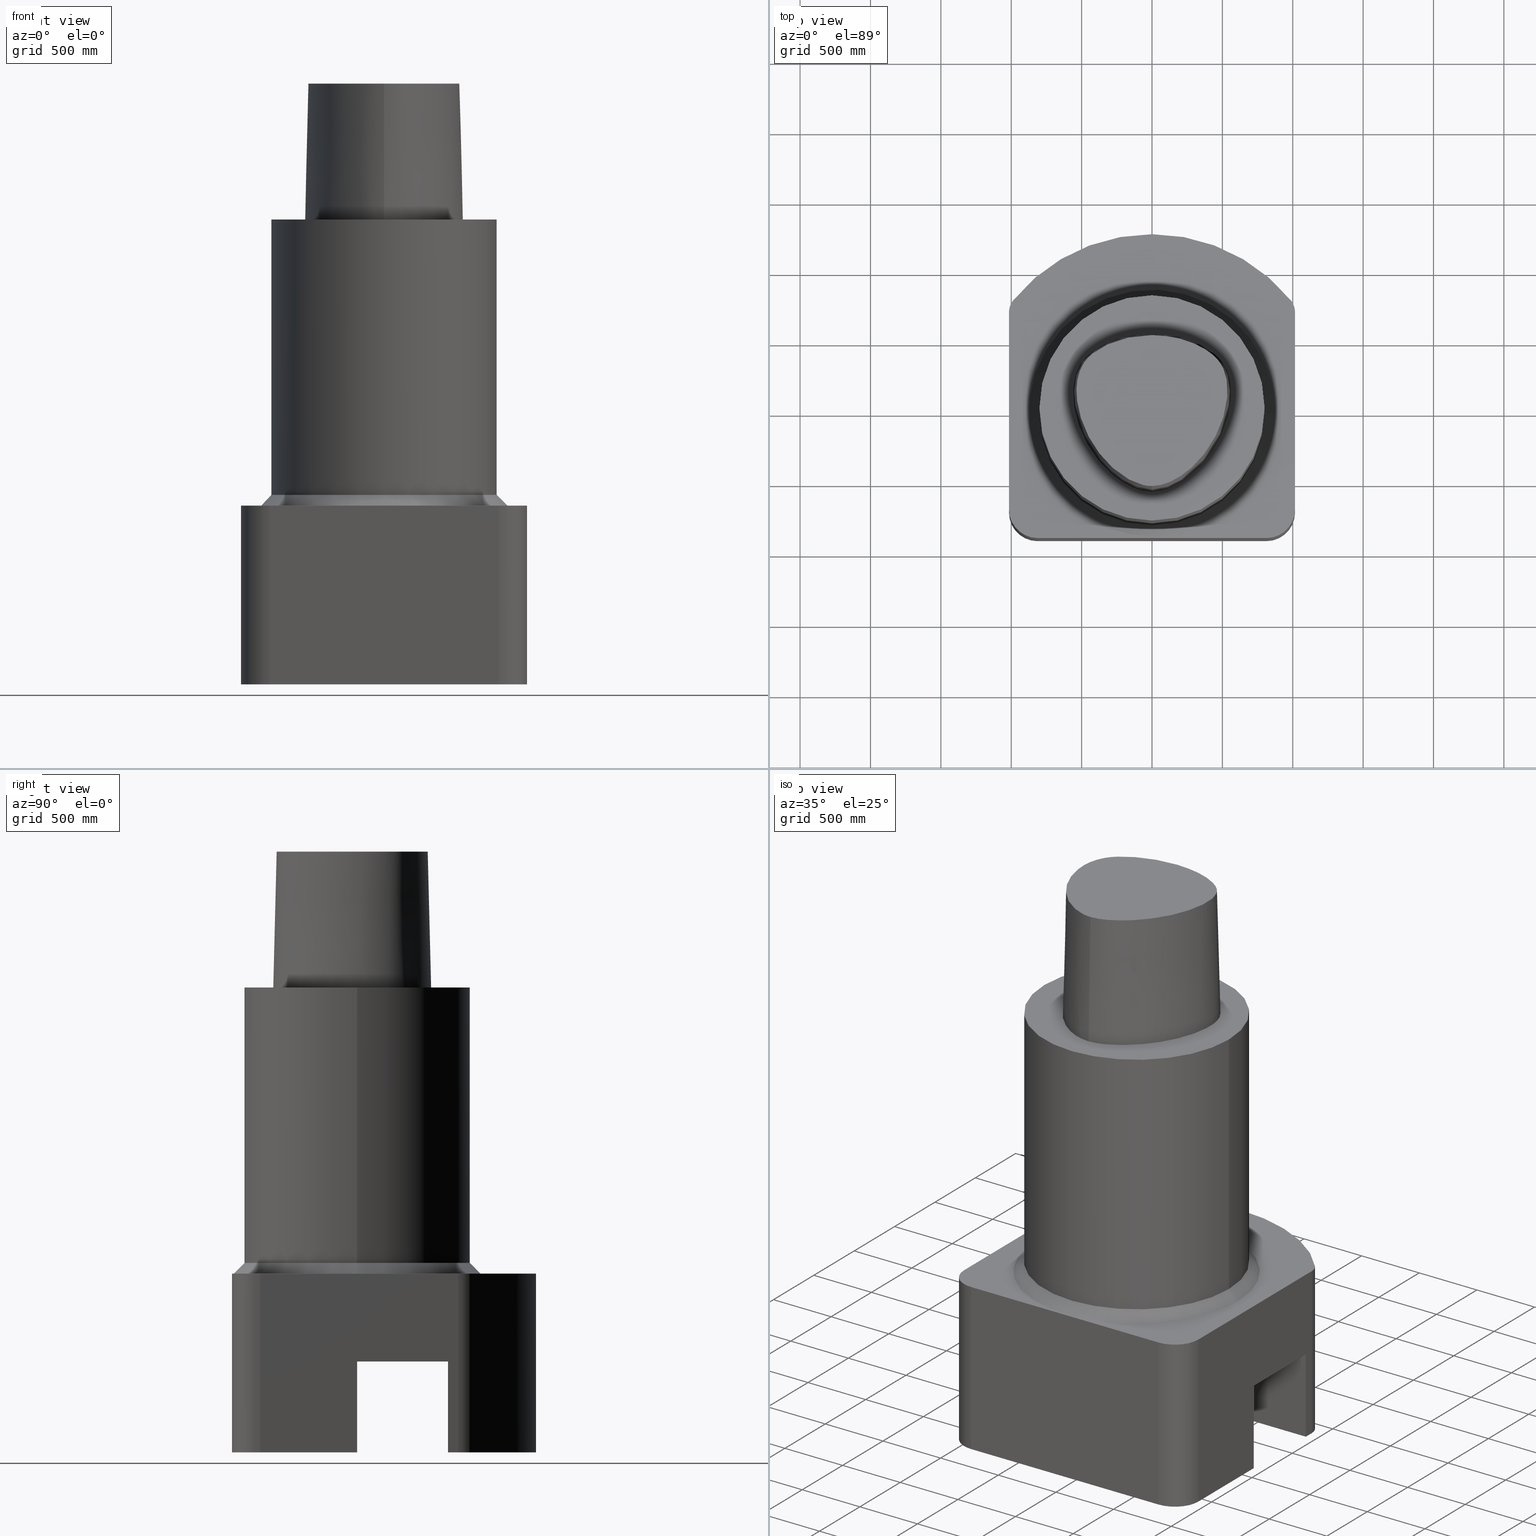
[diagram: canonical four-view strip — front | top / right | iso, engineering-drawing reading convention]
A machine part, canonical four-view strip (front | top / right | iso — engineering-drawing reading convention). The complete STEP part file that produces these views, byte-faithful:
ISO-10303-21;
HEADER;
FILE_DESCRIPTION((''),'1');
FILE_NAME('V:/01_Dxf_Field-HP\X2\FF71FF6FFF8CFF9F5916\X0\2013/BIGKAISER\X2\FF76FF80FF9BFF78FF9E63B28F095206\X0\_BKUS_201803/C6-BH/C6-90-BH1.000N-5.125.stp','2018-03-14T08:04:11',(''),(''),'Spatial Interop R21 SP3','Kubotek KeyCreator 2011 V10.0.2 (22737)',' ');
FILE_SCHEMA(('automotive_design'));
ENDSEC;
DATA;
#1=MECHANICAL_DESIGN_GEOMETRIC_PRESENTATION_REPRESENTATION(' ',(#10,#11,#12,#13,#14,#15,#16,#17,#18,#19,#20,#21,#22,#23,#24,#25,#26,#27,#28,#29,#30,#31,#32,#33,#34,#35,#36,#37,#38,#39,#40,#41,#42,#43,#44,#45,#46,#47,#48,#49,#50,#51,#52,#53,#54,#55,#56,#57,#58,#59,#60,#61,#62,#63,#64,#65,#66,#67,#68,#69,#70,#71,#72,#73,#74,#75,#76,#77,#78),#6);
#2=PRODUCT_DEFINITION_CONTEXT('',#79,'design');
#3=APPLICATION_PROTOCOL_DEFINITION('INTERNATIONAL STANDARD','automotive_design',1994,#79);
#4=PRODUCT_CATEGORY_RELATIONSHIP('NONE','NONE',#80,#81);
#5=SHAPE_DEFINITION_REPRESENTATION(#82,#83);
#6= (GEOMETRIC_REPRESENTATION_CONTEXT(3)GLOBAL_UNCERTAINTY_ASSIGNED_CONTEXT((#86))GLOBAL_UNIT_ASSIGNED_CONTEXT((#88,#89,#90))REPRESENTATION_CONTEXT('NONE','WORKSPACE'));
#10=STYLED_ITEM('',(#92),#93);
#11=STYLED_ITEM('',(#94,#95),#96);
#12=STYLED_ITEM('',(#97),#98);
#13=STYLED_ITEM('',(#99),#100);
#14=STYLED_ITEM('',(#101,#102),#103);
#15=STYLED_ITEM('',(#104),#105);
#16=STYLED_ITEM('',(#106),#107);
#17=STYLED_ITEM('',(#108),#109);
#18=STYLED_ITEM('',(#110),#111);
#19=STYLED_ITEM('',(#112),#113);
#20=STYLED_ITEM('',(#114),#115);
#21=STYLED_ITEM('',(#116),#117);
#22=STYLED_ITEM('',(#118),#119);
#23=STYLED_ITEM('',(#120),#121);
#24=STYLED_ITEM('',(#122),#123);
#25=STYLED_ITEM('',(#124,#125),#126);
#26=STYLED_ITEM('',(#127),#128);
#27=STYLED_ITEM('',(#129),#130);
#28=STYLED_ITEM('',(#131,#132),#133);
#29=STYLED_ITEM('',(#134),#135);
#30=STYLED_ITEM('',(#136),#137);
#31=STYLED_ITEM('',(#138,#139),#140);
#32=STYLED_ITEM('',(#141),#142);
#33=STYLED_ITEM('',(#143),#144);
#34=STYLED_ITEM('',(#145),#146);
#35=STYLED_ITEM('',(#147,#148),#149);
#36=STYLED_ITEM('',(#150,#151),#152);
#37=STYLED_ITEM('',(#153),#154);
#38=STYLED_ITEM('',(#155,#156),#157);
#39=STYLED_ITEM('',(#158),#159);
#40=STYLED_ITEM('',(#160,#161),#162);
#41=STYLED_ITEM('',(#163,#164),#165);
#42=STYLED_ITEM('',(#166,#167),#168);
#43=STYLED_ITEM('',(#169),#170);
#44=STYLED_ITEM('',(#171,#172),#173);
#45=STYLED_ITEM('',(#174,#175),#176);
#46=STYLED_ITEM('',(#177),#178);
#47=STYLED_ITEM('',(#179),#180);
#48=STYLED_ITEM('',(#181),#182);
#49=STYLED_ITEM('',(#183,#184),#185);
#50=STYLED_ITEM('',(#186),#187);
#51=STYLED_ITEM('',(#188),#189);
#52=STYLED_ITEM('',(#190),#191);
#53=STYLED_ITEM('',(#192,#193),#194);
#54=STYLED_ITEM('',(#195),#196);
#55=STYLED_ITEM('',(#197),#198);
#56=STYLED_ITEM('',(#199,#200),#201);
#57=STYLED_ITEM('',(#202),#203);
#58=STYLED_ITEM('',(#204),#205);
#59=STYLED_ITEM('',(#206),#207);
#60=STYLED_ITEM('',(#208,#209),#210);
#61=STYLED_ITEM('',(#211),#212);
#62=STYLED_ITEM('',(#213,#214),#215);
#63=STYLED_ITEM('',(#216),#217);
#64=STYLED_ITEM('',(#218,#219),#220);
#65=STYLED_ITEM('',(#221),#222);
#66=STYLED_ITEM('',(#223),#224);
#67=STYLED_ITEM('',(#225),#226);
#68=STYLED_ITEM('',(#227),#228);
#69=STYLED_ITEM('',(#229),#230);
#70=STYLED_ITEM('',(#231),#232);
#71=STYLED_ITEM('',(#233),#234);
#72=STYLED_ITEM('',(#235),#236);
#73=STYLED_ITEM('',(#237),#238);
#74=STYLED_ITEM('',(#239),#240);
#75=STYLED_ITEM('',(#241,#242),#243);
#76=STYLED_ITEM('',(#244,#245),#246);
#77=STYLED_ITEM('',(#247,#248),#249);
#78=STYLED_ITEM('',(#250),#251);
#79=APPLICATION_CONTEXT(' ');
#80=PRODUCT_CATEGORY('part','NONE');
#81=PRODUCT_RELATED_PRODUCT_CATEGORY('detail',' ',(#252));
#82=PRODUCT_DEFINITION_SHAPE('NONE','NONE',#253);
#83=ADVANCED_BREP_SHAPE_REPRESENTATION('Unnamed[1]',(#162,#254),#6);
#86=UNCERTAINTY_MEASURE_WITH_UNIT(LENGTH_MEASURE(1.0E-006),#88,'','');
#88= (CONVERSION_BASED_UNIT('INCH',#257)LENGTH_UNIT()NAMED_UNIT(#260));
#89= (NAMED_UNIT(#262)PLANE_ANGLE_UNIT()SI_UNIT($,.RADIAN.));
#90= (NAMED_UNIT(#262)SOLID_ANGLE_UNIT()SI_UNIT($,.STERADIAN.));
#92=PRESENTATION_STYLE_ASSIGNMENT((#268));
#93=EDGE_CURVE('Unnamed[1]',#269,#270,#271,.T.);
#94=PRESENTATION_STYLE_ASSIGNMENT((#272));
#95=PRESENTATION_STYLE_ASSIGNMENT((#273));
#96=ADVANCED_FACE('Unnamed[1]',(#274),#275,.F.);
#97=PRESENTATION_STYLE_ASSIGNMENT((#276));
#98=EDGE_CURVE('Unnamed[1]',#277,#278,#279,.T.);
#99=PRESENTATION_STYLE_ASSIGNMENT((#280));
#100=EDGE_CURVE('Unnamed[1]',#281,#282,#283,.T.);
#101=PRESENTATION_STYLE_ASSIGNMENT((#284));
#102=PRESENTATION_STYLE_ASSIGNMENT((#285));
#103=ADVANCED_FACE('Unnamed[1]',(#286,#287),#288,.T.);
#104=PRESENTATION_STYLE_ASSIGNMENT((#289));
#105=EDGE_CURVE('Unnamed[1]',#290,#291,#292,.T.);
#106=PRESENTATION_STYLE_ASSIGNMENT((#293));
#107=EDGE_CURVE('Unnamed[1]',#294,#295,#296,.T.);
#108=PRESENTATION_STYLE_ASSIGNMENT((#297));
#109=EDGE_CURVE('Unnamed[1]',#298,#281,#299,.T.);
#110=PRESENTATION_STYLE_ASSIGNMENT((#300));
#111=EDGE_CURVE('Unnamed[1]',#301,#302,#303,.T.);
#112=PRESENTATION_STYLE_ASSIGNMENT((#304));
#113=EDGE_CURVE('Unnamed[1]',#298,#305,#306,.T.);
#114=PRESENTATION_STYLE_ASSIGNMENT((#307));
#115=EDGE_CURVE('Unnamed[1]',#308,#309,#310,.T.);
#116=PRESENTATION_STYLE_ASSIGNMENT((#311));
#117=EDGE_CURVE('Unnamed[1]',#278,#295,#312,.T.);
#118=PRESENTATION_STYLE_ASSIGNMENT((#313));
#119=EDGE_CURVE('Unnamed[1]',#314,#282,#315,.T.);
#120=PRESENTATION_STYLE_ASSIGNMENT((#316));
#121=EDGE_CURVE('Unnamed[1]',#282,#317,#318,.T.);
#122=PRESENTATION_STYLE_ASSIGNMENT((#319));
#123=EDGE_CURVE('Unnamed[1]',#320,#308,#321,.T.);
#124=PRESENTATION_STYLE_ASSIGNMENT((#322));
#125=PRESENTATION_STYLE_ASSIGNMENT((#323));
#126=ADVANCED_FACE('Unnamed[1]',(#324),#325,.T.);
#127=PRESENTATION_STYLE_ASSIGNMENT((#326));
#128=EDGE_CURVE('Unnamed[1]',#327,#308,#328,.T.);
#129=PRESENTATION_STYLE_ASSIGNMENT((#329));
#130=EDGE_CURVE('Unnamed[1]',#330,#330,#331,.T.);
#131=PRESENTATION_STYLE_ASSIGNMENT((#332));
#132=PRESENTATION_STYLE_ASSIGNMENT((#333));
#133=ADVANCED_FACE('Unnamed[1]',(#334,#335),#336,.T.);
#134=PRESENTATION_STYLE_ASSIGNMENT((#337));
#135=EDGE_CURVE('Unnamed[1]',#302,#281,#338,.T.);
#136=PRESENTATION_STYLE_ASSIGNMENT((#339));
#137=EDGE_CURVE('Unnamed[1]',#290,#294,#340,.T.);
#138=PRESENTATION_STYLE_ASSIGNMENT((#341));
#139=PRESENTATION_STYLE_ASSIGNMENT((#342));
#140=ADVANCED_FACE('Unnamed[1]',(#343),#344,.T.);
#141=PRESENTATION_STYLE_ASSIGNMENT((#345));
#142=EDGE_CURVE('Unnamed[1]',#317,#309,#346,.T.);
#143=PRESENTATION_STYLE_ASSIGNMENT((#347));
#144=EDGE_CURVE('Unnamed[1]',#291,#348,#349,.T.);
#145=PRESENTATION_STYLE_ASSIGNMENT((#350));
#146=EDGE_CURVE('Unnamed[1]',#351,#317,#352,.T.);
#147=PRESENTATION_STYLE_ASSIGNMENT((#353));
#148=PRESENTATION_STYLE_ASSIGNMENT((#354));
#149=ADVANCED_FACE('Unnamed[1]',(#355),#356,.T.);
#150=PRESENTATION_STYLE_ASSIGNMENT((#357));
#151=PRESENTATION_STYLE_ASSIGNMENT((#358));
#152=ADVANCED_FACE('Unnamed[1]',(#359),#360,.T.);
#153=PRESENTATION_STYLE_ASSIGNMENT((#361));
#154=EDGE_CURVE('Unnamed[1]',#362,#291,#363,.T.);
#155=PRESENTATION_STYLE_ASSIGNMENT((#364));
#156=PRESENTATION_STYLE_ASSIGNMENT((#365));
#157=ADVANCED_FACE('Unnamed[1]',(#366),#367,.F.);
#158=PRESENTATION_STYLE_ASSIGNMENT((#368));
#159=EDGE_CURVE('Unnamed[1]',#305,#302,#369,.T.);
#160=PRESENTATION_STYLE_ASSIGNMENT((#370));
#161=PRESENTATION_STYLE_ASSIGNMENT((#371));
#162=MANIFOLD_SOLID_BREP('Unnamed[1]',#372);
#163=PRESENTATION_STYLE_ASSIGNMENT((#373));
#164=PRESENTATION_STYLE_ASSIGNMENT((#374));
#165=ADVANCED_FACE('Unnamed[1]',(#375),#376,.F.);
#166=PRESENTATION_STYLE_ASSIGNMENT((#377));
#167=PRESENTATION_STYLE_ASSIGNMENT((#378));
#168=ADVANCED_FACE('Unnamed[1]',(#379,#380),#381,.T.);
#169=PRESENTATION_STYLE_ASSIGNMENT((#382));
#170=EDGE_CURVE('Unnamed[1]',#383,#277,#384,.T.);
#171=PRESENTATION_STYLE_ASSIGNMENT((#385));
#172=PRESENTATION_STYLE_ASSIGNMENT((#386));
#173=ADVANCED_FACE('Unnamed[1]',(#387),#388,.F.);
#174=PRESENTATION_STYLE_ASSIGNMENT((#389));
#175=PRESENTATION_STYLE_ASSIGNMENT((#390));
#176=ADVANCED_FACE('Unnamed[1]',(#391),#392,.T.);
#177=PRESENTATION_STYLE_ASSIGNMENT((#393));
#178=EDGE_CURVE('Unnamed[1]',#394,#351,#395,.T.);
#179=PRESENTATION_STYLE_ASSIGNMENT((#396));
#180=EDGE_CURVE('Unnamed[1]',#269,#397,#398,.T.);
#181=PRESENTATION_STYLE_ASSIGNMENT((#399));
#182=EDGE_CURVE('Unnamed[1]',#394,#383,#400,.T.);
#183=PRESENTATION_STYLE_ASSIGNMENT((#401));
#184=PRESENTATION_STYLE_ASSIGNMENT((#402));
#185=ADVANCED_FACE('Unnamed[1]',(#403,#404),#405,.T.);
#186=PRESENTATION_STYLE_ASSIGNMENT((#406));
#187=EDGE_CURVE('Unnamed[1]',#320,#362,#407,.T.);
#188=PRESENTATION_STYLE_ASSIGNMENT((#408));
#189=EDGE_CURVE('Unnamed[1]',#409,#270,#410,.T.);
#190=PRESENTATION_STYLE_ASSIGNMENT((#411));
#191=EDGE_CURVE('Unnamed[1]',#278,#290,#412,.T.);
#192=PRESENTATION_STYLE_ASSIGNMENT((#413));
#193=PRESENTATION_STYLE_ASSIGNMENT((#414));
#194=ADVANCED_FACE('Unnamed[1]',(#415),#416,.F.);
#195=PRESENTATION_STYLE_ASSIGNMENT((#417));
#196=EDGE_CURVE('Unnamed[1]',#418,#418,#419,.T.);
#197=PRESENTATION_STYLE_ASSIGNMENT((#420));
#198=EDGE_CURVE('Unnamed[1]',#397,#409,#421,.T.);
#199=PRESENTATION_STYLE_ASSIGNMENT((#422));
#200=PRESENTATION_STYLE_ASSIGNMENT((#423));
#201=ADVANCED_FACE('Unnamed[1]',(#424),#425,.T.);
#202=PRESENTATION_STYLE_ASSIGNMENT((#426));
#203=EDGE_CURVE('Unnamed[1]',#348,#383,#427,.T.);
#204=PRESENTATION_STYLE_ASSIGNMENT((#428));
#205=EDGE_CURVE('Unnamed[1]',#351,#314,#429,.T.);
#206=PRESENTATION_STYLE_ASSIGNMENT((#430));
#207=EDGE_CURVE('Unnamed[1]',#269,#431,#432,.T.);
#208=PRESENTATION_STYLE_ASSIGNMENT((#433));
#209=PRESENTATION_STYLE_ASSIGNMENT((#434));
#210=ADVANCED_FACE('Unnamed[1]',(#435),#436,.T.);
#211=PRESENTATION_STYLE_ASSIGNMENT((#437));
#212=EDGE_CURVE('Unnamed[1]',#438,#394,#439,.T.);
#213=PRESENTATION_STYLE_ASSIGNMENT((#440));
#214=PRESENTATION_STYLE_ASSIGNMENT((#441));
#215=ADVANCED_FACE('Unnamed[1]',(#442),#443,.T.);
#216=PRESENTATION_STYLE_ASSIGNMENT((#444));
#217=EDGE_CURVE('Unnamed[1]',#270,#431,#445,.T.);
#218=PRESENTATION_STYLE_ASSIGNMENT((#446));
#219=PRESENTATION_STYLE_ASSIGNMENT((#447));
#220=ADVANCED_FACE('Unnamed[1]',(#448),#449,.T.);
#221=PRESENTATION_STYLE_ASSIGNMENT((#450));
#222=EDGE_CURVE('Unnamed[1]',#348,#327,#451,.T.);
#223=PRESENTATION_STYLE_ASSIGNMENT((#452));
#224=EDGE_CURVE('Unnamed[1]',#431,#409,#453,.T.);
#225=PRESENTATION_STYLE_ASSIGNMENT((#454));
#226=EDGE_CURVE('Unnamed[1]',#301,#320,#455,.T.);
#227=PRESENTATION_STYLE_ASSIGNMENT((#456));
#228=EDGE_CURVE('Unnamed[1]',#314,#298,#457,.T.);
#229=PRESENTATION_STYLE_ASSIGNMENT((#458));
#230=EDGE_CURVE('Unnamed[1]',#397,#269,#459,.T.);
#231=PRESENTATION_STYLE_ASSIGNMENT((#460));
#232=EDGE_CURVE('Unnamed[1]',#327,#362,#461,.T.);
#233=PRESENTATION_STYLE_ASSIGNMENT((#462));
#234=EDGE_CURVE('Unnamed[1]',#438,#295,#463,.T.);
#235=PRESENTATION_STYLE_ASSIGNMENT((#464));
#236=EDGE_CURVE('Unnamed[1]',#277,#438,#465,.T.);
#237=PRESENTATION_STYLE_ASSIGNMENT((#466));
#238=EDGE_CURVE('Unnamed[1]',#305,#294,#467,.T.);
#239=PRESENTATION_STYLE_ASSIGNMENT((#468));
#240=EDGE_CURVE('Unnamed[1]',#469,#469,#470,.T.);
#241=PRESENTATION_STYLE_ASSIGNMENT((#471));
#242=PRESENTATION_STYLE_ASSIGNMENT((#472));
#243=ADVANCED_FACE('Unnamed[1]',(#473),#474,.T.);
#244=PRESENTATION_STYLE_ASSIGNMENT((#475));
#245=PRESENTATION_STYLE_ASSIGNMENT((#476));
#246=ADVANCED_FACE('Unnamed[1]',(#477),#478,.F.);
#247=PRESENTATION_STYLE_ASSIGNMENT((#479));
#248=PRESENTATION_STYLE_ASSIGNMENT((#480));
#249=ADVANCED_FACE('Unnamed[1]',(#481),#482,.T.);
#250=PRESENTATION_STYLE_ASSIGNMENT((#483));
#251=EDGE_CURVE('Unnamed[1]',#309,#301,#484,.T.);
#252=PRODUCT('Unnamed[1]','Unnamed[1]','PART-Unnamed[1]-DESC',(#485));
#253=PRODUCT_DEFINITION('NONE','NONE',#486,#2);
#254=AXIS2_PLACEMENT_3D('',#487,#488,#489);
#257=LENGTH_MEASURE_WITH_UNIT(LENGTH_MEASURE(25.4),#490);
#260=DIMENSIONAL_EXPONENTS(1.0,0.0,0.0,0.0,0.0,0.0,0.0);
#262=DIMENSIONAL_EXPONENTS(0.0,0.0,0.0,0.0,0.0,0.0,0.0);
#268=CURVE_STYLE('',#491,POSITIVE_LENGTH_MEASURE(1000.0),#492);
#269=VERTEX_POINT('',#493);
#270=VERTEX_POINT('',#494);
#271=LINE('',#495,#496);
#272=SURFACE_STYLE_USAGE(.BOTH.,#497);
#273=CURVE_STYLE('',#498,POSITIVE_LENGTH_MEASURE(1000.0),#499);
#274=FACE_OUTER_BOUND('',#500,.T.);
#275=PLANE('',#501);
#276=CURVE_STYLE('',#502,POSITIVE_LENGTH_MEASURE(1000.0),#503);
#277=VERTEX_POINT('',#504);
#278=VERTEX_POINT('',#505);
#279=CIRCLE('',#506,50.0000000000007);
#280=CURVE_STYLE('',#507,POSITIVE_LENGTH_MEASURE(1000.0),#508);
#281=VERTEX_POINT('',#509);
#282=VERTEX_POINT('',#510);
#283=LINE('',#511,#512);
#284=SURFACE_STYLE_USAGE(.BOTH.,#513);
#285=CURVE_STYLE('',#514,POSITIVE_LENGTH_MEASURE(1000.0),#515);
#286=FACE_BOUND('',#516,.T.);
#287=FACE_OUTER_BOUND('',#517,.T.);
#288=PLANE('',#518);
#289=CURVE_STYLE('',#519,POSITIVE_LENGTH_MEASURE(1000.0),#520);
#290=VERTEX_POINT('',#521);
#291=VERTEX_POINT('',#522);
#292=LINE('',#523,#524);
#293=CURVE_STYLE('',#525,POSITIVE_LENGTH_MEASURE(1000.0),#526);
#294=VERTEX_POINT('',#527);
#295=VERTEX_POINT('',#528);
#296=CIRCLE('',#529,5.0);
#297=CURVE_STYLE('',#530,POSITIVE_LENGTH_MEASURE(1000.0),#531);
#298=VERTEX_POINT('',#532);
#299=LINE('',#533,#534);
#300=CURVE_STYLE('',#535,POSITIVE_LENGTH_MEASURE(1000.0),#536);
#301=VERTEX_POINT('',#537);
#302=VERTEX_POINT('',#538);
#303=LINE('',#539,#540);
#304=CURVE_STYLE('',#541,POSITIVE_LENGTH_MEASURE(1000.0),#542);
#305=VERTEX_POINT('',#543);
#306=CIRCLE('',#544,8.0);
#307=CURVE_STYLE('',#545,POSITIVE_LENGTH_MEASURE(1000.0),#546);
#308=VERTEX_POINT('',#547);
#309=VERTEX_POINT('',#548);
#310=LINE('',#549,#550);
#311=CURVE_STYLE('',#551,POSITIVE_LENGTH_MEASURE(1000.0),#552);
#312=LINE('',#553,#554);
#313=CURVE_STYLE('',#555,POSITIVE_LENGTH_MEASURE(1000.0),#556);
#314=VERTEX_POINT('',#557);
#315=LINE('',#558,#559);
#316=CURVE_STYLE('',#560,POSITIVE_LENGTH_MEASURE(1000.0),#561);
#317=VERTEX_POINT('',#562);
#318=CIRCLE('',#563,8.0);
#319=CURVE_STYLE('',#564,POSITIVE_LENGTH_MEASURE(1000.0),#565);
#320=VERTEX_POINT('',#566);
#321=LINE('',#567,#568);
#322=SURFACE_STYLE_USAGE(.BOTH.,#569);
#323=CURVE_STYLE('',#570,POSITIVE_LENGTH_MEASURE(1000.0),#571);
#324=FACE_OUTER_BOUND('',#572,.T.);
#325=CYLINDRICAL_SURFACE('',#573,5.0);
#326=CURVE_STYLE('',#574,POSITIVE_LENGTH_MEASURE(1000.0),#575);
#327=VERTEX_POINT('',#576);
#328=LINE('',#577,#578);
#329=CURVE_STYLE('',#579,POSITIVE_LENGTH_MEASURE(1000.0),#580);
#330=VERTEX_POINT('',#581);
#331=CIRCLE('',#582,31.5);
#332=SURFACE_STYLE_USAGE(.BOTH.,#583);
#333=CURVE_STYLE('',#584,POSITIVE_LENGTH_MEASURE(1000.0),#585);
#334=FACE_BOUND('',#586,.T.);
#335=FACE_OUTER_BOUND('',#587,.T.);
#336=PLANE('',#588);
#337=CURVE_STYLE('',#589,POSITIVE_LENGTH_MEASURE(1000.0),#590);
#338=CIRCLE('',#591,8.0);
#339=CURVE_STYLE('',#592,POSITIVE_LENGTH_MEASURE(1000.0),#593);
#340=LINE('',#594,#595);
#341=SURFACE_STYLE_USAGE(.BOTH.,#596);
#342=CURVE_STYLE('',#597,POSITIVE_LENGTH_MEASURE(1000.0),#598);
#343=FACE_OUTER_BOUND('',#599,.T.);
#344=CYLINDRICAL_SURFACE('',#600,5.0);
#345=CURVE_STYLE('',#601,POSITIVE_LENGTH_MEASURE(1000.0),#602);
#346=LINE('',#603,#604);
#347=CURVE_STYLE('',#605,POSITIVE_LENGTH_MEASURE(1000.0),#606);
#348=VERTEX_POINT('',#607);
#349=LINE('',#608,#609);
#350=CURVE_STYLE('',#610,POSITIVE_LENGTH_MEASURE(1000.0),#611);
#351=VERTEX_POINT('',#612);
#352=LINE('',#613,#614);
#353=SURFACE_STYLE_USAGE(.BOTH.,#615);
#354=CURVE_STYLE('',#616,POSITIVE_LENGTH_MEASURE(1000.0),#617);
#355=FACE_OUTER_BOUND('',#618,.T.);
#356=PLANE('',#619);
#357=SURFACE_STYLE_USAGE(.BOTH.,#620);
#358=CURVE_STYLE('',#621,POSITIVE_LENGTH_MEASURE(1000.0),#622);
#359=FACE_OUTER_BOUND('',#623,.T.);
#360=PLANE('',#624);
#361=CURVE_STYLE('',#625,POSITIVE_LENGTH_MEASURE(1000.0),#626);
#362=VERTEX_POINT('',#627);
#363=LINE('',#628,#629);
#364=SURFACE_STYLE_USAGE(.BOTH.,#630);
#365=CURVE_STYLE('',#631,POSITIVE_LENGTH_MEASURE(1000.0),#632);
#366=FACE_OUTER_BOUND('',#633,.T.);
#367=PLANE('',#634);
#368=CURVE_STYLE('',#635,POSITIVE_LENGTH_MEASURE(1000.0),#636);
#369=LINE('',#637,#638);
#370=SURFACE_STYLE_USAGE(.BOTH.,#639);
#371=CURVE_STYLE('',#640,POSITIVE_LENGTH_MEASURE(1000.0),#641);
#372=CLOSED_SHELL('',(#243,#210,#201,#152,#157,#194,#96,#176,#149,#165,#215,#246,#140,#126,#173,#220,#103,#249,#133,#185,#168));
#373=SURFACE_STYLE_USAGE(.BOTH.,#642);
#374=CURVE_STYLE('',#643,POSITIVE_LENGTH_MEASURE(1000.0),#644);
#375=FACE_OUTER_BOUND('',#645,.T.);
#376=PLANE('',#646);
#377=SURFACE_STYLE_USAGE(.BOTH.,#647);
#378=CURVE_STYLE('',#648,POSITIVE_LENGTH_MEASURE(1000.0),#649);
#379=FACE_BOUND('',#650,.T.);
#380=FACE_BOUND('',#651,.T.);
#381=CONICAL_SURFACE('',#652,33.0000508075692,0.785398163397448);
#382=CURVE_STYLE('',#653,POSITIVE_LENGTH_MEASURE(1000.0),#654);
#383=VERTEX_POINT('',#655);
#384=CIRCLE('',#656,5.0);
#385=SURFACE_STYLE_USAGE(.BOTH.,#657);
#386=CURVE_STYLE('',#658,POSITIVE_LENGTH_MEASURE(1000.0),#659);
#387=FACE_OUTER_BOUND('',#660,.T.);
#388=PLANE('',#661);
#389=SURFACE_STYLE_USAGE(.BOTH.,#662);
#390=CURVE_STYLE('',#663,POSITIVE_LENGTH_MEASURE(1000.0),#664);
#391=FACE_OUTER_BOUND('',#665,.T.);
#392=PLANE('',#666);
#393=CURVE_STYLE('',#667,POSITIVE_LENGTH_MEASURE(1000.0),#668);
#394=VERTEX_POINT('',#669);
#395=LINE('',#670,#671);
#396=CURVE_STYLE('',#672,POSITIVE_LENGTH_MEASURE(1000.0),#673);
#397=VERTEX_POINT('',#674);
#398=B_SPLINE_CURVE_WITH_KNOTS('',3,(#675,#676,#677,#678,#679,#680,#681,#682,#683,#684,#685,#686,#687,#688,#689,#690),.UNSPECIFIED.,.F.,.F.,(4,1,1,1,1,1,1,1,1,1,1,1,1,4),(0.0,0.447924670568964,0.9388024242536,1.50591409090711,2.07314340012323,2.72424957442464,3.2253501842849,3.80982102049476,4.34867996267067,4.85900173381144,5.37972031856977,6.03459825488646,6.61113557741484,6.61513393087395),.UNSPECIFIED.);
#399=CURVE_STYLE('',#691,POSITIVE_LENGTH_MEASURE(1000.0),#692);
#400=LINE('',#693,#694);
#401=SURFACE_STYLE_USAGE(.BOTH.,#695);
#402=CURVE_STYLE('',#696,POSITIVE_LENGTH_MEASURE(1000.0),#697);
#403=FACE_BOUND('',#698,.T.);
#404=FACE_BOUND('',#699,.T.);
#405=CYLINDRICAL_SURFACE('',#700,31.5);
#406=CURVE_STYLE('',#701,POSITIVE_LENGTH_MEASURE(1000.0),#702);
#407=LINE('',#703,#704);
#408=CURVE_STYLE('',#705,POSITIVE_LENGTH_MEASURE(1000.0),#706);
#409=VERTEX_POINT('',#707);
#410=B_SPLINE_CURVE_WITH_KNOTS('',3,(#708,#709,#710,#711,#712,#713,#714,#715,#716,#717,#718,#719,#720,#721,#722,#723,#724,#725),.UNSPECIFIED.,.F.,.F.,(4,1,1,1,1,1,1,1,1,2,1,1,1,1,4),(-6.6151339308743,-6.20168806019465,-5.78824218951501,-5.37479631883537,-4.96135044815572,-4.13445870679644,-3.30756696543715,-2.89412109475751,-2.48067522407786,-2.06722935339822,-1.65378348271857,-1.24033761203893,-0.826891741359287,-0.413445870679644,0.0),.UNSPECIFIED.);
#411=CURVE_STYLE('',#726,POSITIVE_LENGTH_MEASURE(1000.0),#727);
#412=CIRCLE('',#728,5.0);
#413=SURFACE_STYLE_USAGE(.BOTH.,#729);
#414=CURVE_STYLE('',#730,POSITIVE_LENGTH_MEASURE(1000.0),#731);
#415=FACE_OUTER_BOUND('',#732,.T.);
#416=PLANE('',#733);
#417=CURVE_STYLE('',#734,POSITIVE_LENGTH_MEASURE(1000.0),#735);
#418=VERTEX_POINT('',#736);
#419=CIRCLE('',#737,34.5001016151384);
#420=CURVE_STYLE('',#738,POSITIVE_LENGTH_MEASURE(1000.0),#739);
#421=LINE('',#740,#741);
#422=SURFACE_STYLE_USAGE(.BOTH.,#742);
#423=CURVE_STYLE('',#743,POSITIVE_LENGTH_MEASURE(1000.0),#744);
#424=FACE_OUTER_BOUND('',#745,.T.);
#425=CONICAL_SURFACE('',#746,1.0,0.0249931148600041);
#426=CURVE_STYLE('',#747,POSITIVE_LENGTH_MEASURE(1000.0),#748);
#427=LINE('',#749,#750);
#428=CURVE_STYLE('',#751,POSITIVE_LENGTH_MEASURE(1000.0),#752);
#429=CIRCLE('',#753,8.0);
#430=CURVE_STYLE('',#754,POSITIVE_LENGTH_MEASURE(1000.0),#755);
#431=VERTEX_POINT('',#756);
#432=LINE('',#757,#758);
#433=SURFACE_STYLE_USAGE(.BOTH.,#759);
#434=CURVE_STYLE('',#760,POSITIVE_LENGTH_MEASURE(1000.0),#761);
#435=FACE_OUTER_BOUND('',#762,.T.);
#436=B_SPLINE_SURFACE_WITH_KNOTS('',3,3,((#763,#764,#765,#766),(#767,#768,#769,#770),(#771,#772,#773,#774),(#775,#776,#777,#778),(#779,#780,#781,#782),(#783,#784,#785,#786),(#787,#788,#789,#790),(#791,#792,#793,#794),(#795,#796,#797,#798),(#799,#800,#801,#802),(#803,#804,#805,#806),(#807,#808,#809,#810),(#811,#812,#813,#814),(#815,#816,#817,#818),(#819,#820,#821,#822),(#823,#824,#825,#826),(#827,#828,#829,#830),(#831,#832,#833,#834)),.UNSPECIFIED.,.F.,.F.,.F.,(4,1,1,1,1,1,1,1,1,2,1,1,1,1,4),(4,4),(-6.6151339308743,-6.20168806019465,-5.78824218951501,-5.37479631883537,-4.96135044815572,-4.13445870679644,-3.30756696543715,-2.89412109475751,-2.48067522407786,-2.06722935339822,-1.65378348271857,-1.24033761203893,-0.826891741359287,-0.413445870679644,0.0),(-3.8,0.0),.UNSPECIFIED.);
#437=CURVE_STYLE('',#835,POSITIVE_LENGTH_MEASURE(1000.0),#836);
#438=VERTEX_POINT('',#837);
#439=CIRCLE('',#838,5.0);
#440=SURFACE_STYLE_USAGE(.BOTH.,#839);
#441=CURVE_STYLE('',#840,POSITIVE_LENGTH_MEASURE(1000.0),#841);
#442=FACE_OUTER_BOUND('',#842,.T.);
#443=CYLINDRICAL_SURFACE('',#843,8.0);
#444=CURVE_STYLE('',#844,POSITIVE_LENGTH_MEASURE(1000.0),#845);
#445=CIRCLE('',#846,0.949936168436318);
#446=SURFACE_STYLE_USAGE(.BOTH.,#847);
#447=CURVE_STYLE('',#848,POSITIVE_LENGTH_MEASURE(1000.0),#849);
#448=FACE_OUTER_BOUND('',#850,.T.);
#449=CYLINDRICAL_SURFACE('',#851,8.0);
#450=CURVE_STYLE('',#852,POSITIVE_LENGTH_MEASURE(1000.0),#853);
#451=LINE('',#854,#855);
#452=CURVE_STYLE('',#856,POSITIVE_LENGTH_MEASURE(1000.0),#857);
#453=B_SPLINE_CURVE_WITH_KNOTS('',3,(#858,#859,#860,#861,#862,#863,#864,#865,#866,#867,#868,#869,#870,#871,#872,#873,#874),.UNSPECIFIED.,.F.,.F.,(4,1,1,1,1,1,1,1,1,1,1,1,1,1,4),(-13.2302678617486,-12.816821991069,-12.4033761203893,-11.9899302497097,-11.57648437903,-11.1630385083504,-10.9563155730106,-10.7495926376707,-10.3361467669911,-9.92270089631145,-9.09580915495216,-8.26891741359287,-7.44202567223358,-7.02857980155394,-6.6151339308743),.UNSPECIFIED.);
#454=CURVE_STYLE('',#875,POSITIVE_LENGTH_MEASURE(1000.0),#876);
#455=LINE('',#877,#878);
#456=CURVE_STYLE('',#879,POSITIVE_LENGTH_MEASURE(1000.0),#880);
#457=LINE('',#881,#882);
#458=CURVE_STYLE('',#883,POSITIVE_LENGTH_MEASURE(1000.0),#884);
#459=B_SPLINE_CURVE_WITH_KNOTS('',3,(#885,#886,#887,#888,#889,#890,#891,#892,#893,#894,#895,#896,#897,#898,#899,#900),.UNSPECIFIED.,.F.,.F.,(4,1,1,1,1,1,1,1,1,1,1,1,1,4),(6.61513393087476,6.99917207152274,7.48193246986995,7.96289324787093,8.45540287038584,9.10291653679981,9.67129810936083,10.1618749681153,10.6358867802489,11.1080734988593,11.6043706019633,12.09451993853,12.6985979284494,13.2302678617486),.UNSPECIFIED.);
#460=CURVE_STYLE('',#901,POSITIVE_LENGTH_MEASURE(1000.0),#902);
#461=LINE('',#903,#904);
#462=CURVE_STYLE('',#905,POSITIVE_LENGTH_MEASURE(1000.0),#906);
#463=CIRCLE('',#907,50.0000000000004);
#464=CURVE_STYLE('',#908,POSITIVE_LENGTH_MEASURE(1000.0),#909);
#465=LINE('',#910,#911);
#466=CURVE_STYLE('',#912,POSITIVE_LENGTH_MEASURE(1000.0),#913);
#467=LINE('',#914,#915);
#468=CURVE_STYLE('',#916,POSITIVE_LENGTH_MEASURE(1000.0),#917);
#469=VERTEX_POINT('',#918);
#470=CIRCLE('',#919,31.5);
#471=SURFACE_STYLE_USAGE(.BOTH.,#920);
#472=CURVE_STYLE('',#921,POSITIVE_LENGTH_MEASURE(1000.0),#922);
#473=FACE_OUTER_BOUND('',#923,.T.);
#474=B_SPLINE_SURFACE_WITH_KNOTS('',3,3,((#924,#925,#926,#927),(#928,#929,#930,#931),(#932,#933,#934,#935),(#936,#937,#938,#939),(#940,#941,#942,#943),(#944,#945,#946,#947),(#948,#949,#950,#951),(#952,#953,#954,#955),(#956,#957,#958,#959),(#960,#961,#962,#963),(#964,#965,#966,#967),(#968,#969,#970,#971),(#972,#973,#974,#975),(#976,#977,#978,#979),(#980,#981,#982,#983),(#984,#985,#986,#987),(#988,#989,#990,#991)),.UNSPECIFIED.,.F.,.F.,.F.,(4,1,1,1,1,1,1,1,1,1,1,1,1,1,4),(4,4),(-13.2302678617486,-12.816821991069,-12.4033761203893,-11.9899302497097,-11.57648437903,-11.1630385083504,-10.9563155730106,-10.7495926376707,-10.3361467669911,-9.92270089631145,-9.09580915495216,-8.26891741359287,-7.44202567223358,-7.02857980155394,-6.6151339308743),(-3.8,0.0),.UNSPECIFIED.);
#475=SURFACE_STYLE_USAGE(.BOTH.,#992);
#476=CURVE_STYLE('',#993,POSITIVE_LENGTH_MEASURE(1000.0),#994);
#477=FACE_OUTER_BOUND('',#995,.T.);
#478=PLANE('',#996);
#479=SURFACE_STYLE_USAGE(.BOTH.,#997);
#480=CURVE_STYLE('',#998,POSITIVE_LENGTH_MEASURE(1000.0),#999);
#481=FACE_OUTER_BOUND('',#1000,.T.);
#482=CYLINDRICAL_SURFACE('',#1001,50.0000000000005);
#483=CURVE_STYLE('',#1002,POSITIVE_LENGTH_MEASURE(1000.0),#1003);
#484=LINE('',#1004,#1005);
#485=PRODUCT_CONTEXT('',#79,'mechanical');
#486=PRODUCT_DEFINITION_FORMATION_WITH_SPECIFIED_SOURCE(' ','NONE',#252,.NOT_KNOWN.);
#487=CARTESIAN_POINT('',(0.0,0.0,0.0));
#488=DIRECTION('',(0.0,0.0,1.0));
#489=DIRECTION('',(1.0,0.0,0.0));
#490= (NAMED_UNIT(#260)LENGTH_UNIT()SI_UNIT(.MILLI.,.METRE.));
#491=DRAUGHTING_PRE_DEFINED_CURVE_FONT('continuous');
#492=COLOUR_RGB('',0.0,1.0,0.0);
#493=CARTESIAN_POINT('',(-0.001218547003662,19.7276821925089,38.0));
#494=CARTESIAN_POINT('',(-0.045171994691285,20.6766009553285,-1.97215226305253E-031));
#495=CARTESIAN_POINT('',(-0.001218547003662,19.7276821925089,38.0));
#496=VECTOR('',#1007,38.0118715498723);
#497=SURFACE_SIDE_STYLE('',(#1008));
#498=DRAUGHTING_PRE_DEFINED_CURVE_FONT('continuous');
#499=COLOUR_RGB('',0.0,1.0,0.0);
#500=EDGE_LOOP('',(#1009,#1010,#1011,#1012));
#501=AXIS2_PLACEMENT_3D('',#1013,#1014,#1015);
#502=DRAUGHTING_PRE_DEFINED_CURVE_FONT('continuous');
#503=COLOUR_RGB('',0.0,1.0,0.0);
#504=CARTESIAN_POINT('',(-38.8888888888895,31.426968052735,-130.0));
#505=CARTESIAN_POINT('',(38.8888888888884,31.4269680527349,-130.0));
#506=AXIS2_PLACEMENT_3D('',#1016,#1017,#1018);
#507=DRAUGHTING_PRE_DEFINED_CURVE_FONT('continuous');
#508=COLOUR_RGB('',0.0,1.0,0.0);
#509=CARTESIAN_POINT('',(31.9999999999995,-35.0000000000004,-130.0));
#510=CARTESIAN_POINT('',(-32.0000000000009,-35.0000000000005,-130.0));
#511=CARTESIAN_POINT('',(12.4999999999999,-35.0000000000004,-130.0));
#512=VECTOR('',#1019,1.0);
#513=SURFACE_SIDE_STYLE('',(#1020));
#514=DRAUGHTING_PRE_DEFINED_CURVE_FONT('continuous');
#515=COLOUR_RGB('',0.0,1.0,0.0);
#516=EDGE_LOOP('',(#1021));
#517=EDGE_LOOP('',(#1022,#1023,#1024,#1025,#1026,#1027,#1028,#1029));
#518=AXIS2_PLACEMENT_3D('',#1030,#1031,#1032);
#519=DRAUGHTING_PRE_DEFINED_CURVE_FONT('continuous');
#520=COLOUR_RGB('',0.0,1.0,0.0);
#521=CARTESIAN_POINT('',(39.9999999999996,28.2842712474614,-130.0));
#522=CARTESIAN_POINT('',(39.9999999999996,25.4,-130.0));
#523=CARTESIAN_POINT('',(39.9999999999996,0.321067811865267,-130.0));
#524=VECTOR('',#1033,1.0);
#525=DRAUGHTING_PRE_DEFINED_CURVE_FONT('continuous');
#526=COLOUR_RGB('',0.0,1.0,0.0);
#527=CARTESIAN_POINT('',(39.9999999999996,28.2842712474614,-80.0));
#528=CARTESIAN_POINT('',(38.8888888888904,31.4269680527325,-80.0));
#529=AXIS2_PLACEMENT_3D('',#1034,#1035,#1036);
#530=DRAUGHTING_PRE_DEFINED_CURVE_FONT('continuous');
#531=COLOUR_RGB('',0.0,1.0,0.0);
#532=CARTESIAN_POINT('',(31.9999999999995,-35.0000000000004,-80.0));
#533=CARTESIAN_POINT('',(31.9999999999996,-35.0000000000004,-256.829591219622));
#534=VECTOR('',#1037,1.0);
#535=DRAUGHTING_PRE_DEFINED_CURVE_FONT('continuous');
#536=COLOUR_RGB('',0.0,1.0,0.0);
#537=CARTESIAN_POINT('',(39.9999999999996,-1.53080849893418E-014,-130.0));
#538=CARTESIAN_POINT('',(39.9999999999996,-27.0000000000003,-130.0));
#539=CARTESIAN_POINT('',(39.9999999999996,0.321067811865267,-130.0));
#540=VECTOR('',#1038,1.0);
#541=DRAUGHTING_PRE_DEFINED_CURVE_FONT('continuous');
#542=COLOUR_RGB('',0.0,1.0,0.0);
#543=CARTESIAN_POINT('',(39.9999999999995,-27.0000000000003,-80.0));
#544=AXIS2_PLACEMENT_3D('',#1039,#1040,#1041);
#545=DRAUGHTING_PRE_DEFINED_CURVE_FONT('continuous');
#546=COLOUR_RGB('',0.0,1.0,0.0);
#547=CARTESIAN_POINT('',(-40.0000000000004,9.42978035343539E-016,-104.6));
#548=CARTESIAN_POINT('',(-40.0000000000004,-6.12323399573598E-016,-130.0));
#549=CARTESIAN_POINT('',(-40.0000000000004,-8.37839604578744E-015,-256.829591219622));
#550=VECTOR('',#1042,1.0);
#551=DRAUGHTING_PRE_DEFINED_CURVE_FONT('continuous');
#552=COLOUR_RGB('',0.0,1.0,0.0);
#553=CARTESIAN_POINT('',(38.8888888888884,31.4269680527349,-256.829591219622));
#554=VECTOR('',#1043,1.0);
#555=DRAUGHTING_PRE_DEFINED_CURVE_FONT('continuous');
#556=COLOUR_RGB('',0.0,1.0,0.0);
#557=CARTESIAN_POINT('',(-32.0000000000009,-35.0000000000005,-80.0));
#558=CARTESIAN_POINT('',(-32.0000000000009,-35.0000000000005,-256.829591219622));
#559=VECTOR('',#1044,1.0);
#560=DRAUGHTING_PRE_DEFINED_CURVE_FONT('continuous');
#561=COLOUR_RGB('',0.0,1.0,0.0);
#562=CARTESIAN_POINT('',(-40.0000000000009,-27.0000000000005,-130.0));
#563=AXIS2_PLACEMENT_3D('',#1045,#1046,#1047);
#564=DRAUGHTING_PRE_DEFINED_CURVE_FONT('continuous');
#565=COLOUR_RGB('',0.0,1.0,0.0);
#566=CARTESIAN_POINT('',(39.9999999999996,-1.37527835544247E-014,-104.6));
#567=CARTESIAN_POINT('',(39.9999999999996,-1.37527835544247E-014,-104.6));
#568=VECTOR('',#1048,1.0);
#569=SURFACE_SIDE_STYLE('',(#1049));
#570=DRAUGHTING_PRE_DEFINED_CURVE_FONT('continuous');
#571=COLOUR_RGB('',0.0,1.0,0.0);
#572=EDGE_LOOP('',(#1050,#1051,#1052,#1053));
#573=AXIS2_PLACEMENT_3D('',#1054,#1055,#1056);
#574=DRAUGHTING_PRE_DEFINED_CURVE_FONT('continuous');
#575=COLOUR_RGB('',0.0,1.0,0.0);
#576=CARTESIAN_POINT('',(-40.0,25.3999999999998,-104.6));
#577=CARTESIAN_POINT('',(-40.0000000000003,6.67106781186598,-104.6));
#578=VECTOR('',#1057,1.0);
#579=DRAUGHTING_PRE_DEFINED_CURVE_FONT('continuous');
#580=COLOUR_RGB('',0.0,1.0,0.0);
#581=CARTESIAN_POINT('',(31.5,-5.78645612597124E-015,3.85763741731416E-015));
#582=AXIS2_PLACEMENT_3D('',#1058,#1059,#1060);
#583=SURFACE_SIDE_STYLE('',(#1061));
#584=DRAUGHTING_PRE_DEFINED_CURVE_FONT('continuous');
#585=COLOUR_RGB('',0.0,1.0,0.0);
#586=EDGE_LOOP('',(#1062,#1063,#1064));
#587=EDGE_LOOP('',(#1065));
#588=AXIS2_PLACEMENT_3D('',#1066,#1067,#1068);
#589=DRAUGHTING_PRE_DEFINED_CURVE_FONT('continuous');
#590=COLOUR_RGB('',0.0,1.0,0.0);
#591=AXIS2_PLACEMENT_3D('',#1069,#1070,#1071);
#592=DRAUGHTING_PRE_DEFINED_CURVE_FONT('continuous');
#593=COLOUR_RGB('',0.0,1.0,0.0);
#594=CARTESIAN_POINT('',(39.9999999999996,28.2842712474614,-256.829591219622));
#595=VECTOR('',#1072,1.0);
#596=SURFACE_SIDE_STYLE('',(#1073));
#597=DRAUGHTING_PRE_DEFINED_CURVE_FONT('continuous');
#598=COLOUR_RGB('',0.0,1.0,0.0);
#599=EDGE_LOOP('',(#1074,#1075,#1076,#1077));
#600=AXIS2_PLACEMENT_3D('',#1078,#1079,#1080);
#601=DRAUGHTING_PRE_DEFINED_CURVE_FONT('continuous');
#602=COLOUR_RGB('',0.0,1.0,0.0);
#603=CARTESIAN_POINT('',(-40.0000000000004,0.321067811865842,-130.0));
#604=VECTOR('',#1081,1.0);
#605=DRAUGHTING_PRE_DEFINED_CURVE_FONT('continuous');
#606=COLOUR_RGB('',0.0,1.0,0.0);
#607=CARTESIAN_POINT('',(-40.0,25.3999999999998,-130.0));
#608=CARTESIAN_POINT('',(12.5,25.3999999999999,-130.0));
#609=VECTOR('',#1082,1.0);
#610=DRAUGHTING_PRE_DEFINED_CURVE_FONT('continuous');
#611=COLOUR_RGB('',0.0,1.0,0.0);
#612=CARTESIAN_POINT('',(-40.0000000000009,-27.0000000000005,-80.0));
#613=CARTESIAN_POINT('',(-40.0000000000009,-27.0000000000005,-256.829591219622));
#614=VECTOR('',#1083,1.0);
#615=SURFACE_SIDE_STYLE('',(#1084));
#616=DRAUGHTING_PRE_DEFINED_CURVE_FONT('continuous');
#617=COLOUR_RGB('',0.0,1.0,0.0);
#618=EDGE_LOOP('',(#1085,#1086,#1087,#1088,#1089,#1090));
#619=AXIS2_PLACEMENT_3D('',#1091,#1092,#1093);
#620=SURFACE_SIDE_STYLE('',(#1094));
#621=DRAUGHTING_PRE_DEFINED_CURVE_FONT('continuous');
#622=COLOUR_RGB('',0.0,1.0,0.0);
#623=EDGE_LOOP('',(#1095,#1096));
#624=AXIS2_PLACEMENT_3D('',#1097,#1098,#1099);
#625=DRAUGHTING_PRE_DEFINED_CURVE_FONT('continuous');
#626=COLOUR_RGB('',0.0,1.0,0.0);
#627=CARTESIAN_POINT('',(39.9999999999996,25.4,-104.6));
#628=CARTESIAN_POINT('',(39.9999999999996,25.4,-256.829591219622));
#629=VECTOR('',#1100,1.0);
#630=SURFACE_SIDE_STYLE('',(#1101));
#631=DRAUGHTING_PRE_DEFINED_CURVE_FONT('continuous');
#632=COLOUR_RGB('',0.0,1.0,0.0);
#633=EDGE_LOOP('',(#1102,#1103,#1104,#1105));
#634=AXIS2_PLACEMENT_3D('',#1106,#1107,#1108);
#635=DRAUGHTING_PRE_DEFINED_CURVE_FONT('continuous');
#636=COLOUR_RGB('',0.0,1.0,0.0);
#637=CARTESIAN_POINT('',(39.9999999999996,-27.0000000000003,-256.829591219622));
#638=VECTOR('',#1109,1.0);
#639=SURFACE_SIDE_STYLE('',(#1110));
#640=DRAUGHTING_PRE_DEFINED_CURVE_FONT('continuous');
#641=COLOUR_RGB('',0.0,1.0,0.0);
#642=SURFACE_SIDE_STYLE('',(#1111));
#643=DRAUGHTING_PRE_DEFINED_CURVE_FONT('continuous');
#644=COLOUR_RGB('',0.0,1.0,0.0);
#645=EDGE_LOOP('',(#1112,#1113,#1114,#1115,#1116,#1117,#1118,#1119));
#646=AXIS2_PLACEMENT_3D('',#1120,#1121,#1122);
#647=SURFACE_SIDE_STYLE('',(#1123));
#648=DRAUGHTING_PRE_DEFINED_CURVE_FONT('continuous');
#649=COLOUR_RGB('',0.0,1.0,0.0);
#650=EDGE_LOOP('',(#1124));
#651=EDGE_LOOP('',(#1125));
#652=AXIS2_PLACEMENT_3D('',#1126,#1127,#1128);
#653=DRAUGHTING_PRE_DEFINED_CURVE_FONT('continuous');
#654=COLOUR_RGB('',0.0,1.0,0.0);
#655=CARTESIAN_POINT('',(-40.0,28.2842712474617,-130.0));
#656=AXIS2_PLACEMENT_3D('',#1129,#1130,#1131);
#657=SURFACE_SIDE_STYLE('',(#1132));
#658=DRAUGHTING_PRE_DEFINED_CURVE_FONT('continuous');
#659=COLOUR_RGB('',0.0,1.0,0.0);
#660=EDGE_LOOP('',(#1133,#1134,#1135,#1136));
#661=AXIS2_PLACEMENT_3D('',#1137,#1138,#1139);
#662=SURFACE_SIDE_STYLE('',(#1140));
#663=DRAUGHTING_PRE_DEFINED_CURVE_FONT('continuous');
#664=COLOUR_RGB('',0.0,1.0,0.0);
#665=EDGE_LOOP('',(#1141,#1142,#1143,#1144,#1145,#1146));
#666=AXIS2_PLACEMENT_3D('',#1147,#1148,#1149);
#667=DRAUGHTING_PRE_DEFINED_CURVE_FONT('continuous');
#668=COLOUR_RGB('',0.0,1.0,0.0);
#669=CARTESIAN_POINT('',(-40.0,28.2842712474617,-80.0));
#670=CARTESIAN_POINT('',(-40.0000000000004,0.32106781186599,-80.0));
#671=VECTOR('',#1150,1.0);
#672=DRAUGHTING_PRE_DEFINED_CURVE_FONT('continuous');
#673=COLOUR_RGB('',0.0,1.0,0.0);
#674=CARTESIAN_POINT('',(0.038736923393866,-22.5191997536361,38.0));
#675=CARTESIAN_POINT('',(-0.001218547003662,19.7276821925089,38.0));
#676=CARTESIAN_POINT('',(-1.49408492138443,19.6585333605309,38.0));
#677=CARTESIAN_POINT('',(-4.62297391420352,19.513604770166,38.0));
#678=CARTESIAN_POINT('',(-9.56160616752212,18.4291575730197,38.0));
#679=CARTESIAN_POINT('',(-14.5427684976927,16.2697452580488,38.0));
#680=CARTESIAN_POINT('',(-19.4315563551602,12.5302108980807,38.0));
#681=CARTESIAN_POINT('',(-21.306358833612,6.76352894547076,38.0));
#682=CARTESIAN_POINT('',(-21.0724946936277,0.957075236984038,38.0));
#683=CARTESIAN_POINT('',(-19.7876470880144,-4.34628503581652,38.0));
#684=CARTESIAN_POINT('',(-17.5396999600095,-9.33314444653089,38.0));
#685=CARTESIAN_POINT('',(-14.645447733857,-13.7185760345629,38.0));
#686=CARTESIAN_POINT('',(-10.7996726536643,-17.856257282137,38.0));
#687=CARTESIAN_POINT('',(-6.00479510196376,-21.2687382067675,38.0));
#688=CARTESIAN_POINT('',(-1.90747171908525,-22.5250621415864,38.0));
#689=CARTESIAN_POINT('',(0.025424107066464,-22.5192678176378,38.0));
#690=CARTESIAN_POINT('',(0.038736923394311,-22.519199753636,38.0));
#691=DRAUGHTING_PRE_DEFINED_CURVE_FONT('continuous');
#692=COLOUR_RGB('',0.0,1.0,0.0);
#693=CARTESIAN_POINT('',(-39.9999999999999,28.2842712474617,-256.829591219622));
#694=VECTOR('',#1151,1.0);
#695=SURFACE_SIDE_STYLE('',(#1152));
#696=DRAUGHTING_PRE_DEFINED_CURVE_FONT('continuous');
#697=COLOUR_RGB('',0.0,1.0,0.0);
#698=EDGE_LOOP('',(#1153));
#699=EDGE_LOOP('',(#1154));
#700=AXIS2_PLACEMENT_3D('',#1155,#1156,#1157);
#701=DRAUGHTING_PRE_DEFINED_CURVE_FONT('continuous');
#702=COLOUR_RGB('',0.0,1.0,0.0);
#703=CARTESIAN_POINT('',(39.9999999999996,6.67106781186528,-104.6));
#704=VECTOR('',#1158,1.0);
#705=DRAUGHTING_PRE_DEFINED_CURVE_FONT('continuous');
#706=COLOUR_RGB('',0.0,1.0,0.0);
#707=CARTESIAN_POINT('',(0.04359356758149,-23.4691235068931,-1.97215226305253E-031));
#708=CARTESIAN_POINT('',(0.04359356758149,-23.4691235068931,-1.97215226305253E-031));
#709=CARTESIAN_POINT('',(-1.4714994713963,-23.4767895315797,-1.97215226305253E-031));
#710=CARTESIAN_POINT('',(-4.43923476371401,-22.821149804767,0.0));
#711=CARTESIAN_POINT('',(-8.35043230079961,-20.8000751253325,0.0));
#712=CARTESIAN_POINT('',(-11.744900222602,-18.1556117874078,1.97215226305253E-031));
#713=CARTESIAN_POINT('',(-15.6989602501314,-14.0406306929147,-9.86076131526265E-032));
#714=CARTESIAN_POINT('',(-19.5352875070682,-8.00624990770787,-9.86076131526265E-032));
#715=CARTESIAN_POINT('',(-21.7205626190491,-1.16081708945282,2.71170936169723E-031));
#716=CARTESIAN_POINT('',(-22.2486616783342,4.54965558738736,3.94430452610506E-031));
#717=CARTESIAN_POINT('',(-21.6646421256468,9.00229539124618,3.94430452610506E-031));
#718=CARTESIAN_POINT('',(-20.3945635471922,11.7780544971003,-9.86076131526265E-032));
#719=CARTESIAN_POINT('',(-18.5925528034471,14.1980602922581,2.95822839457879E-031));
#720=CARTESIAN_POINT('',(-16.3226584122258,16.1777748720707,3.94430452610506E-031));
#721=CARTESIAN_POINT('',(-12.5076407874579,18.2524201541303,3.94430452610506E-031));
#722=CARTESIAN_POINT('',(-8.46776192107786,19.679114377952,-3.94430452610506E-031));
#723=CARTESIAN_POINT('',(-4.23043497193604,20.487781597334,1.97215226305253E-031));
#724=CARTESIAN_POINT('',(-1.42313094248379,20.6127745766442,0.0));
#725=CARTESIAN_POINT('',(-0.045171994691285,20.6766009553285,-1.97215226305253E-031));
#726=DRAUGHTING_PRE_DEFINED_CURVE_FONT('continuous');
#727=COLOUR_RGB('',0.0,1.0,0.0);
#728=AXIS2_PLACEMENT_3D('',#1159,#1160,#1161);
#729=SURFACE_SIDE_STYLE('',(#1162));
#730=DRAUGHTING_PRE_DEFINED_CURVE_FONT('continuous');
#731=COLOUR_RGB('',0.0,1.0,0.0);
#732=EDGE_LOOP('',(#1163,#1164,#1165,#1166));
#733=AXIS2_PLACEMENT_3D('',#1167,#1168,#1169);
#734=DRAUGHTING_PRE_DEFINED_CURVE_FONT('continuous');
#735=COLOUR_RGB('',0.0,1.0,0.0);
#736=CARTESIAN_POINT('',(34.5001016151384,-1.12361530485751E-014,-80.0));
#737=AXIS2_PLACEMENT_3D('',#1170,#1171,#1172);
#738=DRAUGHTING_PRE_DEFINED_CURVE_FONT('continuous');
#739=COLOUR_RGB('',0.0,1.0,0.0);
#740=CARTESIAN_POINT('',(0.038736923393866,-22.5191997536361,38.0));
#741=VECTOR('',#1173,38.0118715498723);
#742=SURFACE_SIDE_STYLE('',(#1174));
#743=DRAUGHTING_PRE_DEFINED_CURVE_FONT('continuous');
#744=COLOUR_RGB('',0.0,1.0,0.0);
#745=EDGE_LOOP('',(#1175,#1176,#1177));
#746=AXIS2_PLACEMENT_3D('',#1178,#1179,#1180);
#747=DRAUGHTING_PRE_DEFINED_CURVE_FONT('continuous');
#748=COLOUR_RGB('',0.0,1.0,0.0);
#749=CARTESIAN_POINT('',(-40.0000000000004,0.321067811865842,-130.0));
#750=VECTOR('',#1181,1.0);
#751=DRAUGHTING_PRE_DEFINED_CURVE_FONT('continuous');
#752=COLOUR_RGB('',0.0,1.0,0.0);
#753=AXIS2_PLACEMENT_3D('',#1182,#1183,#1184);
#754=DRAUGHTING_PRE_DEFINED_CURVE_FONT('continuous');
#755=COLOUR_RGB('',0.0,1.0,0.0);
#756=CARTESIAN_POINT('',(0.044682985379347,20.6765087343109,0.0));
#757=CARTESIAN_POINT('',(-0.001218547003662,19.7276821925089,38.0));
#758=VECTOR('',#1185,38.0118715503078);
#759=SURFACE_SIDE_STYLE('',(#1186));
#760=DRAUGHTING_PRE_DEFINED_CURVE_FONT('continuous');
#761=COLOUR_RGB('',0.0,1.0,0.0);
#762=EDGE_LOOP('',(#1187,#1188,#1189,#1190));
#763=CARTESIAN_POINT('',(0.038736923393866,-22.5191997536361,38.0));
#764=CARTESIAN_POINT('',(0.04035580478973,-22.8358410047159,25.3333333333066));
#765=CARTESIAN_POINT('',(0.041974686185626,-23.1524822558133,12.6666666666934));
#766=CARTESIAN_POINT('',(0.04359356758149,-23.4691235068931,-1.97215226305253E-031));
#767=CARTESIAN_POINT('',(-1.33786123484754,-22.5261650259856,38.0));
#768=CARTESIAN_POINT('',(-1.38240731367927,-22.8430399310626,25.3333333333066));
#769=CARTESIAN_POINT('',(-1.42695339249092,-23.1599147815484,12.6666666666934));
#770=CARTESIAN_POINT('',(-1.4714994713963,-23.4767895315797,-1.97215226305253E-031));
#771=CARTESIAN_POINT('',(-4.08909358431842,-21.9268839879558,38.0));
#772=CARTESIAN_POINT('',(-4.20580731135515,-22.2249725500078,25.3333333333066));
#773=CARTESIAN_POINT('',(-4.32252104640446,-22.5230611651922,12.6666666666934));
#774=CARTESIAN_POINT('',(-4.43923476371401,-22.821149804767,0.0));
#775=CARTESIAN_POINT('',(-7.8333083619947,-19.9973514861616,38.0));
#776=CARTESIAN_POINT('',(-8.00568301809614,-20.2649260859405,25.3333333333066));
#777=CARTESIAN_POINT('',(-8.1780576640789,-20.532500564315,12.6666666666934));
#778=CARTESIAN_POINT('',(-8.35043230079961,-20.8000751253325,0.0));
#779=CARTESIAN_POINT('',(-11.1035071147626,-17.450554957873,38.0));
#780=CARTESIAN_POINT('',(-11.3173048160562,-17.6855739222454,25.3333333333066));
#781=CARTESIAN_POINT('',(-11.5311025116181,-17.9205928617968,12.6666666666934));
#782=CARTESIAN_POINT('',(-11.744900222602,-18.1556117874078,1.97215226305253E-031));
#783=CARTESIAN_POINT('',(-14.9379535189057,-13.461132049697,38.0));
#784=CARTESIAN_POINT('',(-15.191622410671,-13.6542981711372,25.3333333333066));
#785=CARTESIAN_POINT('',(-15.4452913389853,-13.8474645327131,12.6666666666934));
#786=CARTESIAN_POINT('',(-15.6989602501314,-14.0406306929147,-9.86076131526265E-032));
#787=CARTESIAN_POINT('',(-18.6681263017223,-7.59391757463204,38.0));
#788=CARTESIAN_POINT('',(-18.9571800800711,-7.73136168081928,25.3333333333066));
#789=CARTESIAN_POINT('',(-19.2462337287194,-7.86880572399774,12.6666666666934));
#790=CARTESIAN_POINT('',(-19.5352875070682,-8.00624990770787,-9.86076131526265E-032));
#791=CARTESIAN_POINT('',(-20.7857899858339,-0.952862819790525,38.0));
#792=CARTESIAN_POINT('',(-21.0973808305434,-1.02218087467418,25.3333333333066));
#793=CARTESIAN_POINT('',(-21.408971677436,-1.09149899580772,12.6666666666934));
#794=CARTESIAN_POINT('',(-21.7205626190491,-1.16081708945282,2.71170936169723E-031));
#795=CARTESIAN_POINT('',(-21.2911760556836,4.5469215763113,38.0));
#796=CARTESIAN_POINT('',(-21.610337904926,4.54783292082248,25.3333333333066));
#797=CARTESIAN_POINT('',(-21.9294998290918,4.54874426225691,12.6666666666934));
#798=CARTESIAN_POINT('',(-22.2486616783342,4.54965558738736,3.94430452610506E-031));
#799=CARTESIAN_POINT('',(-20.7345309521958,8.74909381391006,38.0));
#800=CARTESIAN_POINT('',(-21.0445680426217,8.83349432450556,25.3333333333066));
#801=CARTESIAN_POINT('',(-21.3546050933631,8.91789488065068,12.6666666666934));
#802=CARTESIAN_POINT('',(-21.6646421256468,9.00229539124618,3.94430452610506E-031));
#803=CARTESIAN_POINT('',(-19.5531512296439,11.3174844040833,38.0));
#804=CARTESIAN_POINT('',(-19.8336219699984,11.4710077674213,25.3333333333066));
#805=CARTESIAN_POINT('',(-20.1140927680763,11.6245311337623,12.6666666666934));
#806=CARTESIAN_POINT('',(-20.3945635471922,11.7780544971003,-9.86076131526265E-032));
#807=CARTESIAN_POINT('',(-17.9100913688793,13.524027510437,38.0));
#808=CARTESIAN_POINT('',(-18.1375785458768,13.7487051053655,25.3333333333066));
#809=CARTESIAN_POINT('',(-18.365065665211,13.9733826973296,12.6666666666934));
#810=CARTESIAN_POINT('',(-18.5925528034471,14.1980602922581,2.95822839457879E-031));
#811=CARTESIAN_POINT('',(-15.7996349656398,15.3762170634413,38.0));
#812=CARTESIAN_POINT('',(-15.9739761051783,15.6434029846179,25.3333333333066));
#813=CARTESIAN_POINT('',(-16.1483172726872,15.9105889315134,12.6666666666934));
#814=CARTESIAN_POINT('',(-16.3226584122258,16.1777748720707,3.94430452610506E-031));
#815=CARTESIAN_POINT('',(-12.1175640002064,17.3825162484012,38.0));
#816=CARTESIAN_POINT('',(-12.2475895903055,17.6724842099619,25.3333333333066));
#817=CARTESIAN_POINT('',(-12.3776152070492,17.9624521925696,12.6666666666934));
#818=CARTESIAN_POINT('',(-12.5076407874579,18.2524201541303,3.94430452610506E-031));
#819=CARTESIAN_POINT('',(-8.21761151654222,18.7588585989994,38.0));
#820=CARTESIAN_POINT('',(-8.30099497910627,19.0656105427881,25.3333333333066));
#821=CARTESIAN_POINT('',(-8.38437843913309,19.3723624535439,12.6666666666934));
#822=CARTESIAN_POINT('',(-8.46776192107786,19.679114377952,-3.94430452610506E-031));
#823=CARTESIAN_POINT('',(-4.13466093881225,19.5396850837055,38.0));
#824=CARTESIAN_POINT('',(-4.16658562115465,19.8557172636973,25.3333333333066));
#825=CARTESIAN_POINT('',(-4.19851029939059,20.1717494367229,12.6666666666934));
#826=CARTESIAN_POINT('',(-4.23043497193604,20.487781597334,1.97215226305253E-031));
#827=CARTESIAN_POINT('',(-1.37917220403684,19.6638560588908,38.0));
#828=CARTESIAN_POINT('',(-1.39382511685176,19.98016223565,25.3333333333066));
#829=CARTESIAN_POINT('',(-1.40847802945569,20.296468399885,12.6666666666934));
#830=CARTESIAN_POINT('',(-1.42313094248379,20.6127745766442,0.0));
#831=CARTESIAN_POINT('',(-0.001218547003662,19.7276821925089,38.0));
#832=CARTESIAN_POINT('',(-0.015869696232855,20.043988446791,25.3333333333066));
#833=CARTESIAN_POINT('',(-0.030520845462092,20.3602947010464,12.6666666666934));
#834=CARTESIAN_POINT('',(-0.045171994691285,20.6766009553285,-1.97215226305253E-031));
#835=DRAUGHTING_PRE_DEFINED_CURVE_FONT('continuous');
#836=COLOUR_RGB('',0.0,1.0,0.0);
#837=CARTESIAN_POINT('',(-38.8888888888895,31.426968052735,-80.0));
#838=AXIS2_PLACEMENT_3D('',#1191,#1192,#1193);
#839=SURFACE_SIDE_STYLE('',(#1194));
#840=DRAUGHTING_PRE_DEFINED_CURVE_FONT('continuous');
#841=COLOUR_RGB('',0.0,1.0,0.0);
#842=EDGE_LOOP('',(#1195,#1196,#1197,#1198));
#843=AXIS2_PLACEMENT_3D('',#1199,#1200,#1201);
#844=DRAUGHTING_PRE_DEFINED_CURVE_FONT('continuous');
#845=COLOUR_RGB('',0.0,1.0,0.0);
#846=AXIS2_PLACEMENT_3D('',#1202,#1203,#1204);
#847=SURFACE_SIDE_STYLE('',(#1205));
#848=DRAUGHTING_PRE_DEFINED_CURVE_FONT('continuous');
#849=COLOUR_RGB('',0.0,1.0,0.0);
#850=EDGE_LOOP('',(#1206,#1207,#1208,#1209));
#851=AXIS2_PLACEMENT_3D('',#1210,#1211,#1212);
#852=DRAUGHTING_PRE_DEFINED_CURVE_FONT('continuous');
#853=COLOUR_RGB('',0.0,1.0,0.0);
#854=CARTESIAN_POINT('',(-40.0,25.3999999999998,-256.829591219622));
#855=VECTOR('',#1213,1.0);
#856=DRAUGHTING_PRE_DEFINED_CURVE_FONT('continuous');
#857=COLOUR_RGB('',0.0,1.0,0.0);
#858=CARTESIAN_POINT('',(0.044682985379347,20.6765087343109,0.0));
#859=CARTESIAN_POINT('',(1.42379272427753,20.6097915814392,-1.97215226305253E-031));
#860=CARTESIAN_POINT('',(4.2230955003445,20.4837538303966,-1.97215226305253E-031));
#861=CARTESIAN_POINT('',(8.47220762821777,19.6890432607088,0.0));
#862=CARTESIAN_POINT('',(12.5141247708253,18.2434968480404,-1.97215226305253E-031));
#863=CARTESIAN_POINT('',(16.3038624872874,16.1734192182143,-1.97215226305253E-031));
#864=CARTESIAN_POINT('',(19.1446913988473,13.7036723639434,-3.94430452610506E-031));
#865=CARTESIAN_POINT('',(20.7319894342149,11.1014620996188,-1.97215226305253E-031));
#866=CARTESIAN_POINT('',(21.7831756505763,8.28099229708081,9.86076131526265E-032));
#867=CARTESIAN_POINT('',(22.2258240701438,4.60865440596506,-9.86076131526265E-032));
#868=CARTESIAN_POINT('',(21.7436130080666,-1.11326526354485,-2.46519032881566E-031));
#869=CARTESIAN_POINT('',(19.5519487660502,-7.95432366164584,-5.91645678915759E-031));
#870=CARTESIAN_POINT('',(14.9574167123838,-15.2089785567293,-3.94430452610506E-031));
#871=CARTESIAN_POINT('',(9.66840283021945,-20.0827414369705,0.0));
#872=CARTESIAN_POINT('',(4.51628650521788,-22.7946374572188,0.0));
#873=CARTESIAN_POINT('',(1.55867251738073,-23.4612972770043,-1.97215226305253E-031));
#874=CARTESIAN_POINT('',(0.04359356758149,-23.4691235068931,-1.97215226305253E-031));
#875=DRAUGHTING_PRE_DEFINED_CURVE_FONT('continuous');
#876=COLOUR_RGB('',0.0,1.0,0.0);
#877=CARTESIAN_POINT('',(39.9999999999996,-2.30741576355557E-014,-256.829591219622));
#878=VECTOR('',#1214,1.0);
#879=DRAUGHTING_PRE_DEFINED_CURVE_FONT('continuous');
#880=COLOUR_RGB('',0.0,1.0,0.0);
#881=CARTESIAN_POINT('',(21.1250254037844,-35.0000000000003,-80.0));
#882=VECTOR('',#1215,1.0);
#883=DRAUGHTING_PRE_DEFINED_CURVE_FONT('continuous');
#884=COLOUR_RGB('',0.0,1.0,0.0);
#885=CARTESIAN_POINT('',(0.038736923394311,-22.519199753636,38.0));
#886=CARTESIAN_POINT('',(1.31742058183662,-22.512662269405,38.0));
#887=CARTESIAN_POINT('',(4.2093773447498,-21.9116226439989,38.0));
#888=CARTESIAN_POINT('',(8.20895504542113,-19.7798683845067,38.0));
#889=CARTESIAN_POINT('',(11.9784633234593,-16.681663904162,38.0));
#890=CARTESIAN_POINT('',(15.5308821579362,-12.5807487594113,38.0));
#891=CARTESIAN_POINT('',(18.4566248438667,-7.64932246015528,38.0));
#892=CARTESIAN_POINT('',(20.4036090752029,-2.27012499825289,38.0));
#893=CARTESIAN_POINT('',(21.2357187429189,2.79891401173156,38.0));
#894=CARTESIAN_POINT('',(21.0811206267748,7.62543090736657,38.0));
#895=CARTESIAN_POINT('',(19.3383577336563,12.2772250726194,38.0));
#896=CARTESIAN_POINT('',(15.5796322014404,15.5799672120682,38.0));
#897=CARTESIAN_POINT('',(10.8392956074438,17.9834601687347,38.0));
#898=CARTESIAN_POINT('',(5.56068045850571,19.4586143858472,38.0));
#899=CARTESIAN_POINT('',(1.77223893711014,19.6418877095654,38.0));
#900=CARTESIAN_POINT('',(-0.001218367817519,19.7276822012873,38.0));
#901=DRAUGHTING_PRE_DEFINED_CURVE_FONT('continuous');
#902=COLOUR_RGB('',0.0,1.0,0.0);
#903=CARTESIAN_POINT('',(39.9999999999996,25.4,-104.6));
#904=VECTOR('',#1216,1.0);
#905=DRAUGHTING_PRE_DEFINED_CURVE_FONT('continuous');
#906=COLOUR_RGB('',0.0,1.0,0.0);
#907=AXIS2_PLACEMENT_3D('',#1217,#1218,#1219);
#908=DRAUGHTING_PRE_DEFINED_CURVE_FONT('continuous');
#909=COLOUR_RGB('',0.0,1.0,0.0);
#910=CARTESIAN_POINT('',(-38.8888888888893,31.4269680527352,-256.829591219622));
#911=VECTOR('',#1220,1.0);
#912=DRAUGHTING_PRE_DEFINED_CURVE_FONT('continuous');
#913=COLOUR_RGB('',0.0,1.0,0.0);
#914=CARTESIAN_POINT('',(39.9999999999996,0.321067811865271,-80.0));
#915=VECTOR('',#1221,1.0);
#916=DRAUGHTING_PRE_DEFINED_CURVE_FONT('continuous');
#917=COLOUR_RGB('',0.0,1.0,0.0);
#918=CARTESIAN_POINT('',(31.5,-1.05013400805559E-014,-76.9998983848616));
#919=AXIS2_PLACEMENT_3D('',#1222,#1223,#1224);
#920=SURFACE_SIDE_STYLE('',(#1225));
#921=DRAUGHTING_PRE_DEFINED_CURVE_FONT('continuous');
#922=COLOUR_RGB('',0.0,1.0,0.0);
#923=EDGE_LOOP('',(#1226,#1227,#1228,#1229));
#924=CARTESIAN_POINT('',(-0.001218367817519,19.7276822012873,38.0));
#925=CARTESIAN_POINT('',(0.014082083248157,20.0439577123075,25.3333333333066));
#926=CARTESIAN_POINT('',(0.029382534313671,20.3602332232908,12.6666666666934));
#927=CARTESIAN_POINT('',(0.044682985379347,20.6765087343109,0.0));
#928=CARTESIAN_POINT('',(1.37788651195108,19.6609652834875,38.0));
#929=CARTESIAN_POINT('',(1.3931885827258,19.9772407169847,25.3333333333066));
#930=CARTESIAN_POINT('',(1.40849065356095,20.2935162254648,12.6666666666934));
#931=CARTESIAN_POINT('',(1.42379272427753,20.6097915814392,-1.97215226305253E-031));
#932=CARTESIAN_POINT('',(4.135446440878,19.5347778787784,38.0));
#933=CARTESIAN_POINT('',(4.16466278851883,19.8511031866125,25.3333333333066));
#934=CARTESIAN_POINT('',(4.1938791526746,20.1674284644204,12.6666666666934));
#935=CARTESIAN_POINT('',(4.2230955003445,20.4837538303966,-1.97215226305253E-031));
#936=CARTESIAN_POINT('',(8.213607363795,18.7706026638736,38.0));
#937=CARTESIAN_POINT('',(8.29980745008421,19.0767495109635,25.3333333333066));
#938=CARTESIAN_POINT('',(8.38600751285747,19.3828964329996,12.6666666666934));
#939=CARTESIAN_POINT('',(8.47220762821777,19.6890432607088,0.0));
#940=CARTESIAN_POINT('',(12.1316338645671,17.3698624840857,38.0));
#941=CARTESIAN_POINT('',(12.2591308270381,17.6610739397708,25.3333333333066));
#942=CARTESIAN_POINT('',(12.3866278083543,17.9522853923553,12.6666666666934));
#943=CARTESIAN_POINT('',(12.5141247708253,18.2434968480404,-1.97215226305253E-031));
#944=CARTESIAN_POINT('',(15.7706546153679,15.3789501349612,38.0));
#945=CARTESIAN_POINT('',(15.9483905900895,15.6437731794811,25.3333333333066));
#946=CARTESIAN_POINT('',(16.1261265513272,15.9085961736944,12.6666666666934));
#947=CARTESIAN_POINT('',(16.3038624872874,16.1734192182143,-1.97215226305253E-031));
#948=CARTESIAN_POINT('',(18.4265894256284,13.0570022172893,38.0));
#949=CARTESIAN_POINT('',(18.6659567517146,13.2725589420689,25.3333333333066));
#950=CARTESIAN_POINT('',(18.9053240921419,13.4881156488541,12.6666666666934));
#951=CARTESIAN_POINT('',(19.1446913988473,13.7036723639434,-3.94430452610506E-031));
#952=CARTESIAN_POINT('',(19.8679958653038,10.6923771981998,38.0));
#953=CARTESIAN_POINT('',(20.1559937048299,10.8287388264873,25.3333333333066));
#954=CARTESIAN_POINT('',(20.4439915656177,10.965100461641,12.6666666666934));
#955=CARTESIAN_POINT('',(20.7319894342149,11.1014620996188,-1.97215226305253E-031));
#956=CARTESIAN_POINT('',(20.8470867582337,8.07149548576131,38.0));
#957=CARTESIAN_POINT('',(21.1591164072431,8.14132775555392,25.3333333333066));
#958=CARTESIAN_POINT('',(21.4711459821861,8.21116003697855,12.6666666666934));
#959=CARTESIAN_POINT('',(21.7831756505763,8.28099229708081,9.86076131526265E-032));
#960=CARTESIAN_POINT('',(21.2693244256982,4.61157245650171,38.0));
#961=CARTESIAN_POINT('',(21.5881576801997,4.6105997689982,25.3333333333066));
#962=CARTESIAN_POINT('',(21.9069908544037,4.60962709346857,12.6666666666934));
#963=CARTESIAN_POINT('',(22.2258240701438,4.60865440596506,-9.86076131526265E-032));
#964=CARTESIAN_POINT('',(20.8071610855575,-0.912828649855193,38.0));
#965=CARTESIAN_POINT('',(21.119311671178,-0.979640884839481,25.3333333333066));
#966=CARTESIAN_POINT('',(21.4314624224461,-1.04645306732201,12.6666666666934));
#967=CARTESIAN_POINT('',(21.7436130080666,-1.11326526354485,-2.46519032881566E-031));
#968=CARTESIAN_POINT('',(18.6841935581315,-7.54428794252837,38.0));
#969=CARTESIAN_POINT('',(18.9734452551861,-7.6809665891091,25.3333333333066));
#970=CARTESIAN_POINT('',(19.2626970689956,-7.81764505382656,12.6666666666934));
#971=CARTESIAN_POINT('',(19.5519487660502,-7.95432366164584,-5.91645678915759E-031));
#972=CARTESIAN_POINT('',(14.2175552814,-14.5971504342323,38.0));
#973=CARTESIAN_POINT('',(14.4641757465198,-14.8010930946929,25.3333333333066));
#974=CARTESIAN_POINT('',(14.710796247264,-15.0050359737917,12.6666666666934));
#975=CARTESIAN_POINT('',(14.9574167123838,-15.2089785567293,-3.94430452610506E-031));
#976=CARTESIAN_POINT('',(9.0844808732933,-19.3179298129689,38.0));
#977=CARTESIAN_POINT('',(9.27912152349017,-19.572866915557,25.3333333333066));
#978=CARTESIAN_POINT('',(9.47376218971294,-19.827804295621,12.6666666666934));
#979=CARTESIAN_POINT('',(9.66840283021945,-20.0827414369705,0.0));
#980=CARTESIAN_POINT('',(4.17112919194182,-21.8987568152736,38.0));
#981=CARTESIAN_POINT('',(4.28618163483998,-22.1973837173649,25.3333333333066));
#982=CARTESIAN_POINT('',(4.40123406239433,-22.4960105163661,12.6666666666934));
#983=CARTESIAN_POINT('',(4.51628650521788,-22.7946374572188,0.0));
#984=CARTESIAN_POINT('',(1.41533654381097,-22.5120888467812,38.0));
#985=CARTESIAN_POINT('',(1.46311520162011,-22.8284916374445,25.3333333333066));
#986=CARTESIAN_POINT('',(1.51089385942236,-23.144894486341,12.6666666666934));
#987=CARTESIAN_POINT('',(1.55867251738073,-23.4612972770043,-1.97215226305253E-031));
#988=CARTESIAN_POINT('',(0.038736923393866,-22.5191997536361,38.0));
#989=CARTESIAN_POINT('',(0.04035580478973,-22.8358410047159,25.3333333333066));
#990=CARTESIAN_POINT('',(0.041974686185626,-23.1524822558133,12.6666666666934));
#991=CARTESIAN_POINT('',(0.04359356758149,-23.4691235068931,-1.97215226305253E-031));
#992=SURFACE_SIDE_STYLE('',(#1230));
#993=DRAUGHTING_PRE_DEFINED_CURVE_FONT('continuous');
#994=COLOUR_RGB('',0.0,1.0,0.0);
#995=EDGE_LOOP('',(#1231,#1232,#1233,#1234,#1235,#1236,#1237,#1238));
#996=AXIS2_PLACEMENT_3D('',#1239,#1240,#1241);
#997=SURFACE_SIDE_STYLE('',(#1242));
#998=DRAUGHTING_PRE_DEFINED_CURVE_FONT('continuous');
#999=COLOUR_RGB('',0.0,1.0,0.0);
#1000=EDGE_LOOP('',(#1243,#1244,#1245,#1246));
#1001=AXIS2_PLACEMENT_3D('',#1247,#1248,#1249);
#1002=DRAUGHTING_PRE_DEFINED_CURVE_FONT('continuous');
#1003=COLOUR_RGB('',0.0,1.0,0.0);
#1004=CARTESIAN_POINT('',(12.5,-1.02564169428591E-014,-130.0));
#1005=VECTOR('',#1250,1.0);
#1007=DIRECTION('',(-0.001156308434589,0.02496374748543,-0.999687688361864));
#1008=SURFACE_STYLE_FILL_AREA(#1251);
#1009=ORIENTED_EDGE('',*,*,#123,.T.);
#1010=ORIENTED_EDGE('',*,*,#128,.F.);
#1011=ORIENTED_EDGE('',*,*,#232,.T.);
#1012=ORIENTED_EDGE('',*,*,#187,.F.);
#1013=CARTESIAN_POINT('',(39.9999999999996,12.7,-104.6));
#1014=DIRECTION('',(-1.22464679914735E-016,6.12323399573677E-017,1.0));
#1015=DIRECTION('',(1.0,-1.83697019872103E-016,1.22464679914735E-016));
#1016=CARTESIAN_POINT('',(1.59204083889156E-014,-7.9602041944578E-015,-130.0));
#1017=DIRECTION('',(1.22464679914735E-016,-6.12323399573677E-017,-1.0));
#1018=DIRECTION('',(1.0,-1.83697019872103E-016,1.22464679914735E-016));
#1019=DIRECTION('',(-1.0,-2.48083823922825E-015,-1.22464679914735E-016));
#1020=SURFACE_STYLE_FILL_AREA(#1252);
#1021=ORIENTED_EDGE('',*,*,#196,.T.);
#1022=ORIENTED_EDGE('',*,*,#212,.T.);
#1023=ORIENTED_EDGE('',*,*,#178,.T.);
#1024=ORIENTED_EDGE('',*,*,#205,.T.);
#1025=ORIENTED_EDGE('',*,*,#228,.T.);
#1026=ORIENTED_EDGE('',*,*,#113,.T.);
#1027=ORIENTED_EDGE('',*,*,#238,.T.);
#1028=ORIENTED_EDGE('',*,*,#107,.T.);
#1029=ORIENTED_EDGE('',*,*,#234,.F.);
#1030=CARTESIAN_POINT('',(42.2500508075694,-1.26597956193848E-014,-80.0));
#1031=DIRECTION('',(-1.22464679914735E-016,6.12323399573677E-017,1.0));
#1032=DIRECTION('',(-1.0,1.83697019872103E-016,-1.22464679914735E-016));
#1033=DIRECTION('',(-3.12222316439655E-016,-1.0,6.12323399573677E-017));
#1034=CARTESIAN_POINT('',(34.9999999999996,28.2842712474614,-80.0));
#1035=DIRECTION('',(-1.22464679914735E-016,6.12323399573677E-017,1.0));
#1036=DIRECTION('',(3.06161699786838E-016,1.0,-6.12323399573676E-017));
#1037=DIRECTION('',(1.22464679914735E-016,-6.12323399573677E-017,-1.0));
#1038=DIRECTION('',(-3.12222316439655E-016,-1.0,6.12323399573677E-017));
#1039=CARTESIAN_POINT('',(31.9999999999995,-27.0000000000004,-80.0));
#1040=DIRECTION('',(-1.22464679914735E-016,6.12323399573677E-017,1.0));
#1041=DIRECTION('',(3.06161699786838E-016,1.0,-6.12323399573677E-017));
#1042=DIRECTION('',(1.22464679914735E-016,-6.12323399573677E-017,-1.0));
#1043=DIRECTION('',(-1.22464679914735E-016,6.12323399573677E-017,1.0));
#1044=DIRECTION('',(1.22464679914735E-016,-6.12323399573677E-017,-1.0));
#1045=CARTESIAN_POINT('',(-32.0000000000009,-27.0000000000005,-130.0));
#1046=DIRECTION('',(1.22464679914735E-016,-6.12323399573677E-017,-1.0));
#1047=DIRECTION('',(3.06161699786838E-016,1.0,-6.12323399573677E-017));
#1048=DIRECTION('',(-1.0,1.83697019872103E-016,-1.22464679914735E-016));
#1049=SURFACE_STYLE_FILL_AREA(#1253);
#1050=ORIENTED_EDGE('',*,*,#191,.F.);
#1051=ORIENTED_EDGE('',*,*,#117,.T.);
#1052=ORIENTED_EDGE('',*,*,#107,.F.);
#1053=ORIENTED_EDGE('',*,*,#137,.F.);
#1054=CARTESIAN_POINT('',(34.9999999999996,28.2842712474614,-256.829591219622));
#1055=DIRECTION('',(-1.22464679914735E-016,6.12323399573677E-017,1.0));
#1056=DIRECTION('',(3.06161699786838E-016,1.0,-6.12323399573676E-017));
#1057=DIRECTION('',(-1.71490361667889E-014,-1.0,6.12323399573656E-017));
#1058=CARTESIAN_POINT('',(0.0,0.0,0.0));
#1059=DIRECTION('',(1.22464679914735E-016,-6.12323399573677E-017,-1.0));
#1060=DIRECTION('',(1.0,-1.83697019872103E-016,1.22464679914735E-016));
#1061=SURFACE_STYLE_FILL_AREA(#1254);
#1062=ORIENTED_EDGE('',*,*,#224,.T.);
#1063=ORIENTED_EDGE('',*,*,#189,.T.);
#1064=ORIENTED_EDGE('',*,*,#217,.T.);
#1065=ORIENTED_EDGE('',*,*,#130,.F.);
#1066=CARTESIAN_POINT('',(15.75,-2.89322806298562E-015,1.92881870865708E-015));
#1067=DIRECTION('',(-1.22464679914735E-016,6.12323399573677E-017,1.0));
#1068=DIRECTION('',(-1.0,1.83697019872103E-016,-1.22464679914735E-016));
#1069=CARTESIAN_POINT('',(31.9999999999996,-27.0000000000004,-130.0));
#1070=DIRECTION('',(1.22464679914735E-016,-6.12323399573677E-017,-1.0));
#1071=DIRECTION('',(3.06161699786838E-016,1.0,-6.12323399573677E-017));
#1072=DIRECTION('',(-1.22464679914735E-016,6.12323399573677E-017,1.0));
#1073=SURFACE_STYLE_FILL_AREA(#1255);
#1074=ORIENTED_EDGE('',*,*,#170,.F.);
#1075=ORIENTED_EDGE('',*,*,#182,.F.);
#1076=ORIENTED_EDGE('',*,*,#212,.F.);
#1077=ORIENTED_EDGE('',*,*,#236,.F.);
#1078=CARTESIAN_POINT('',(-35.0000000000004,28.2842712474617,-256.829591219622));
#1079=DIRECTION('',(-1.22464679914735E-016,6.12323399573677E-017,1.0));
#1080=DIRECTION('',(3.06161699786838E-016,1.0,-6.12323399573676E-017));
#1081=DIRECTION('',(1.71490361667889E-014,1.0,-6.12323399573656E-017));
#1082=DIRECTION('',(-1.0,-2.65847392316831E-015,-1.22464679914735E-016));
#1083=DIRECTION('',(1.22464679914735E-016,-6.12323399573677E-017,-1.0));
#1084=SURFACE_STYLE_FILL_AREA(#1256);
#1085=ORIENTED_EDGE('',*,*,#251,.T.);
#1086=ORIENTED_EDGE('',*,*,#111,.T.);
#1087=ORIENTED_EDGE('',*,*,#135,.T.);
#1088=ORIENTED_EDGE('',*,*,#100,.T.);
#1089=ORIENTED_EDGE('',*,*,#121,.T.);
#1090=ORIENTED_EDGE('',*,*,#142,.T.);
#1091=CARTESIAN_POINT('',(25.0000000000003,-1.25526296912604E-014,-130.0));
#1092=DIRECTION('',(1.22464679914735E-016,-6.12323399573677E-017,-1.0));
#1093=DIRECTION('',(1.0,-1.83697019872103E-016,1.22464679914735E-016));
#1094=SURFACE_STYLE_FILL_AREA(#1257);
#1095=ORIENTED_EDGE('',*,*,#180,.T.);
#1096=ORIENTED_EDGE('',*,*,#230,.T.);
#1097=CARTESIAN_POINT('',(0.008647668684817,1.77491953635526,38.0));
#1098=DIRECTION('',(-1.12481983699639E-032,0.0,1.0));
#1099=DIRECTION('',(1.0,0.0,1.12481983699639E-032));
#1100=DIRECTION('',(1.22464679914735E-016,-6.12323399573677E-017,-1.0));
#1101=SURFACE_STYLE_FILL_AREA(#1258);
#1102=ORIENTED_EDGE('',*,*,#251,.F.);
#1103=ORIENTED_EDGE('',*,*,#115,.F.);
#1104=ORIENTED_EDGE('',*,*,#123,.F.);
#1105=ORIENTED_EDGE('',*,*,#226,.F.);
#1106=CARTESIAN_POINT('',(-4.1618936984752E-013,-1.57262768406716E-014,-256.829591219622));
#1107=DIRECTION('',(-1.83697019872103E-016,-1.0,6.12323399573677E-017));
#1108=DIRECTION('',(1.0,-1.83697019872103E-016,1.22464679914735E-016));
#1109=DIRECTION('',(1.22464679914735E-016,-6.12323399573677E-017,-1.0));
#1110=SURFACE_STYLE_FILL_AREA(#1259);
#1111=SURFACE_STYLE_FILL_AREA(#1260);
#1112=ORIENTED_EDGE('',*,*,#226,.T.);
#1113=ORIENTED_EDGE('',*,*,#187,.T.);
#1114=ORIENTED_EDGE('',*,*,#154,.T.);
#1115=ORIENTED_EDGE('',*,*,#105,.F.);
#1116=ORIENTED_EDGE('',*,*,#137,.T.);
#1117=ORIENTED_EDGE('',*,*,#238,.F.);
#1118=ORIENTED_EDGE('',*,*,#159,.T.);
#1119=ORIENTED_EDGE('',*,*,#111,.F.);
#1120=CARTESIAN_POINT('',(39.9999999999996,0.642135623730544,-256.829591219622));
#1121=DIRECTION('',(-1.0,3.12222316439655E-016,-1.22464679914735E-016));
#1122=DIRECTION('',(-3.12222316439655E-016,-1.0,6.12323399573677E-017));
#1123=SURFACE_STYLE_FILL_AREA(#1261);
#1124=ORIENTED_EDGE('',*,*,#196,.F.);
#1125=ORIENTED_EDGE('',*,*,#240,.T.);
#1126=CARTESIAN_POINT('',(9.61347115117402E-015,-4.80673557558702E-015,-78.4999491924308));
#1127=DIRECTION('',(1.22464679914735E-016,-6.12323399573677E-017,-1.0));
#1128=DIRECTION('',(1.0,-1.83697019872103E-016,1.22464679914735E-016));
#1129=CARTESIAN_POINT('',(-35.0000000000004,28.2842712474617,-130.0));
#1130=DIRECTION('',(1.22464679914735E-016,-6.12323399573677E-017,-1.0));
#1131=DIRECTION('',(3.06161699786838E-016,1.0,-6.12323399573676E-017));
#1132=SURFACE_STYLE_FILL_AREA(#1262);
#1133=ORIENTED_EDGE('',*,*,#100,.F.);
#1134=ORIENTED_EDGE('',*,*,#109,.F.);
#1135=ORIENTED_EDGE('',*,*,#228,.F.);
#1136=ORIENTED_EDGE('',*,*,#119,.T.);
#1137=CARTESIAN_POINT('',(-6.64203295701478E-013,-35.0000000000004,-256.829591219622));
#1138=DIRECTION('',(-2.48083823922825E-015,1.0,-6.1232339957368E-017));
#1139=DIRECTION('',(-1.0,-2.48083823922825E-015,-1.22464679914735E-016));
#1140=SURFACE_STYLE_FILL_AREA(#1263);
#1141=ORIENTED_EDGE('',*,*,#144,.T.);
#1142=ORIENTED_EDGE('',*,*,#203,.T.);
#1143=ORIENTED_EDGE('',*,*,#170,.T.);
#1144=ORIENTED_EDGE('',*,*,#98,.T.);
#1145=ORIENTED_EDGE('',*,*,#191,.T.);
#1146=ORIENTED_EDGE('',*,*,#105,.T.);
#1147=CARTESIAN_POINT('',(25.0000000000003,-1.25526296912604E-014,-130.0));
#1148=DIRECTION('',(1.22464679914735E-016,-6.12323399573677E-017,-1.0));
#1149=DIRECTION('',(1.0,-1.83697019872103E-016,1.22464679914735E-016));
#1150=DIRECTION('',(-1.71490361667889E-014,-1.0,6.12323399573656E-017));
#1151=DIRECTION('',(1.22464679914735E-016,-6.12323399573677E-017,-1.0));
#1152=SURFACE_STYLE_FILL_AREA(#1264);
#1153=ORIENTED_EDGE('',*,*,#240,.F.);
#1154=ORIENTED_EDGE('',*,*,#130,.T.);
#1155=CARTESIAN_POINT('',(4.71488395458461E-015,-2.35744197729231E-015,-38.4999491924308));
#1156=DIRECTION('',(1.22464679914735E-016,-6.12323399573677E-017,-1.0));
#1157=DIRECTION('',(1.0,-1.83697019872103E-016,1.22464679914735E-016));
#1158=DIRECTION('',(3.12222316439655E-016,1.0,-6.12323399573677E-017));
#1159=CARTESIAN_POINT('',(34.9999999999996,28.2842712474614,-130.0));
#1160=DIRECTION('',(1.22464679914735E-016,-6.12323399573677E-017,-1.0));
#1161=DIRECTION('',(3.06161699786838E-016,1.0,-6.12323399573676E-017));
#1162=SURFACE_STYLE_FILL_AREA(#1265);
#1163=ORIENTED_EDGE('',*,*,#144,.F.);
#1164=ORIENTED_EDGE('',*,*,#154,.F.);
#1165=ORIENTED_EDGE('',*,*,#232,.F.);
#1166=ORIENTED_EDGE('',*,*,#222,.F.);
#1167=CARTESIAN_POINT('',(-1.91255217457137E-013,25.3999999999999,-256.829591219622));
#1168=DIRECTION('',(-2.65847392316831E-015,1.0,-6.1232339957368E-017));
#1169=DIRECTION('',(-1.0,-2.65847392316831E-015,-1.22464679914735E-016));
#1170=CARTESIAN_POINT('',(9.79717439317882E-015,-4.89858719658942E-015,-80.0));
#1171=DIRECTION('',(1.22464679914735E-016,-6.12323399573677E-017,-1.0));
#1172=DIRECTION('',(1.0,-1.83697019872103E-016,1.22464679914735E-016));
#1173=DIRECTION('',(0.000127766510556,-0.024990186342461,-0.999687688361864));
#1174=SURFACE_STYLE_FILL_AREA(#1266);
#1175=ORIENTED_EDGE('',*,*,#217,.F.);
#1176=ORIENTED_EDGE('',*,*,#93,.F.);
#1177=ORIENTED_EDGE('',*,*,#207,.T.);
#1178=CARTESIAN_POINT('',(-0.001218547003662,19.7276821925089,-2.00268782779425));
#1179=DIRECTION('',(1.12481983699639E-032,-0.0,-1.0));
#1180=DIRECTION('',(-0.046269895968506,0.99892897481606,-5.2045296841135E-034));
#1181=DIRECTION('',(1.71490361667889E-014,1.0,-6.12323399573656E-017));
#1182=CARTESIAN_POINT('',(-32.0000000000009,-27.0000000000005,-80.0));
#1183=DIRECTION('',(-1.22464679914735E-016,6.12323399573677E-017,1.0));
#1184=DIRECTION('',(3.06161699786838E-016,1.0,-6.12323399573677E-017));
#1185=DIRECTION('',(0.001207557810519,0.024961321374199,-0.999687688350411));
#1186=SURFACE_STYLE_FILL_AREA(#1267);
#1187=ORIENTED_EDGE('',*,*,#189,.F.);
#1188=ORIENTED_EDGE('',*,*,#198,.F.);
#1189=ORIENTED_EDGE('',*,*,#180,.F.);
#1190=ORIENTED_EDGE('',*,*,#93,.T.);
#1191=CARTESIAN_POINT('',(-35.0000000000004,28.2842712474617,-80.0));
#1192=DIRECTION('',(-1.22464679914735E-016,6.12323399573677E-017,1.0));
#1193=DIRECTION('',(3.06161699786838E-016,1.0,-6.12323399573676E-017));
#1194=SURFACE_STYLE_FILL_AREA(#1268);
#1195=ORIENTED_EDGE('',*,*,#121,.F.);
#1196=ORIENTED_EDGE('',*,*,#119,.F.);
#1197=ORIENTED_EDGE('',*,*,#205,.F.);
#1198=ORIENTED_EDGE('',*,*,#146,.T.);
#1199=CARTESIAN_POINT('',(-32.0000000000009,-27.0000000000005,-256.829591219622));
#1200=DIRECTION('',(-1.22464679914735E-016,6.12323399573677E-017,1.0));
#1201=DIRECTION('',(3.06161699786838E-016,1.0,-6.12323399573677E-017));
#1202=CARTESIAN_POINT('',(-0.001218547003662,19.7276821925089,1.90050309739906E-015));
#1203=DIRECTION('',(1.22464679914735E-016,-6.12323399573677E-017,-1.0));
#1204=DIRECTION('',(-0.046269895968506,0.998928974816059,-6.68331865786729E-017));
#1205=SURFACE_STYLE_FILL_AREA(#1269);
#1206=ORIENTED_EDGE('',*,*,#135,.F.);
#1207=ORIENTED_EDGE('',*,*,#159,.F.);
#1208=ORIENTED_EDGE('',*,*,#113,.F.);
#1209=ORIENTED_EDGE('',*,*,#109,.T.);
#1210=CARTESIAN_POINT('',(31.9999999999996,-27.0000000000004,-256.829591219622));
#1211=DIRECTION('',(-1.22464679914735E-016,6.12323399573677E-017,1.0));
#1212=DIRECTION('',(3.06161699786838E-016,1.0,-6.12323399573677E-017));
#1213=DIRECTION('',(-1.22464679914735E-016,6.12323399573677E-017,1.0));
#1214=DIRECTION('',(-1.22464679914735E-016,6.12323399573677E-017,1.0));
#1215=DIRECTION('',(1.0,2.48083823922825E-015,1.22464679914735E-016));
#1216=DIRECTION('',(1.0,2.65847392316831E-015,1.22464679914735E-016));
#1217=CARTESIAN_POINT('',(9.79717439317882E-015,-4.89858719658942E-015,-80.0));
#1218=DIRECTION('',(1.22464679914735E-016,-6.12323399573677E-017,-1.0));
#1219=DIRECTION('',(1.0,-1.83697019872103E-016,1.22464679914735E-016));
#1220=DIRECTION('',(-1.22464679914735E-016,6.12323399573677E-017,1.0));
#1221=DIRECTION('',(3.12222316439655E-016,1.0,-6.12323399573677E-017));
#1222=CARTESIAN_POINT('',(9.42976790916922E-015,-4.71488395458462E-015,-76.9998983848616));
#1223=DIRECTION('',(1.22464679914735E-016,-6.12323399573677E-017,-1.0));
#1224=DIRECTION('',(1.0,-1.83697019872103E-016,1.22464679914735E-016));
#1225=SURFACE_STYLE_FILL_AREA(#1270);
#1226=ORIENTED_EDGE('',*,*,#224,.F.);
#1227=ORIENTED_EDGE('',*,*,#207,.F.);
#1228=ORIENTED_EDGE('',*,*,#230,.F.);
#1229=ORIENTED_EDGE('',*,*,#198,.T.);
#1230=SURFACE_STYLE_FILL_AREA(#1271);
#1231=ORIENTED_EDGE('',*,*,#115,.T.);
#1232=ORIENTED_EDGE('',*,*,#142,.F.);
#1233=ORIENTED_EDGE('',*,*,#146,.F.);
#1234=ORIENTED_EDGE('',*,*,#178,.F.);
#1235=ORIENTED_EDGE('',*,*,#182,.T.);
#1236=ORIENTED_EDGE('',*,*,#203,.F.);
#1237=ORIENTED_EDGE('',*,*,#222,.T.);
#1238=ORIENTED_EDGE('',*,*,#128,.T.);
#1239=CARTESIAN_POINT('',(-40.0000000000004,0.642135623730573,-256.829591219622));
#1240=DIRECTION('',(1.0,-1.71490361667889E-014,1.22464679914736E-016));
#1241=DIRECTION('',(1.71490361667889E-014,1.0,-6.12323399573656E-017));
#1242=SURFACE_STYLE_FILL_AREA(#1272);
#1243=ORIENTED_EDGE('',*,*,#236,.T.);
#1244=ORIENTED_EDGE('',*,*,#234,.T.);
#1245=ORIENTED_EDGE('',*,*,#117,.F.);
#1246=ORIENTED_EDGE('',*,*,#98,.F.);
#1247=CARTESIAN_POINT('',(1.28587913910472E-014,-6.42939569552361E-015,-105.0));
#1248=DIRECTION('',(1.22464679914735E-016,-6.12323399573677E-017,-1.0));
#1249=DIRECTION('',(1.0,-1.83697019872103E-016,1.22464679914735E-016));
#1250=DIRECTION('',(1.0,-1.83697019872103E-016,1.22464679914735E-016));
#1251=FILL_AREA_STYLE('',(#1273));
#1252=FILL_AREA_STYLE('',(#1274));
#1253=FILL_AREA_STYLE('',(#1275));
#1254=FILL_AREA_STYLE('',(#1276));
#1255=FILL_AREA_STYLE('',(#1277));
#1256=FILL_AREA_STYLE('',(#1278));
#1257=FILL_AREA_STYLE('',(#1279));
#1258=FILL_AREA_STYLE('',(#1280));
#1259=FILL_AREA_STYLE('',(#1281));
#1260=FILL_AREA_STYLE('',(#1282));
#1261=FILL_AREA_STYLE('',(#1283));
#1262=FILL_AREA_STYLE('',(#1284));
#1263=FILL_AREA_STYLE('',(#1285));
#1264=FILL_AREA_STYLE('',(#1286));
#1265=FILL_AREA_STYLE('',(#1287));
#1266=FILL_AREA_STYLE('',(#1288));
#1267=FILL_AREA_STYLE('',(#1289));
#1268=FILL_AREA_STYLE('',(#1290));
#1269=FILL_AREA_STYLE('',(#1291));
#1270=FILL_AREA_STYLE('',(#1292));
#1271=FILL_AREA_STYLE('',(#1293));
#1272=FILL_AREA_STYLE('',(#1294));
#1273=FILL_AREA_STYLE_COLOUR('',#1295);
#1274=FILL_AREA_STYLE_COLOUR('',#1296);
#1275=FILL_AREA_STYLE_COLOUR('',#1297);
#1276=FILL_AREA_STYLE_COLOUR('',#1298);
#1277=FILL_AREA_STYLE_COLOUR('',#1299);
#1278=FILL_AREA_STYLE_COLOUR('',#1300);
#1279=FILL_AREA_STYLE_COLOUR('',#1301);
#1280=FILL_AREA_STYLE_COLOUR('',#1302);
#1281=FILL_AREA_STYLE_COLOUR('',#1303);
#1282=FILL_AREA_STYLE_COLOUR('',#1304);
#1283=FILL_AREA_STYLE_COLOUR('',#1305);
#1284=FILL_AREA_STYLE_COLOUR('',#1306);
#1285=FILL_AREA_STYLE_COLOUR('',#1307);
#1286=FILL_AREA_STYLE_COLOUR('',#1308);
#1287=FILL_AREA_STYLE_COLOUR('',#1309);
#1288=FILL_AREA_STYLE_COLOUR('',#1310);
#1289=FILL_AREA_STYLE_COLOUR('',#1311);
#1290=FILL_AREA_STYLE_COLOUR('',#1312);
#1291=FILL_AREA_STYLE_COLOUR('',#1313);
#1292=FILL_AREA_STYLE_COLOUR('',#1314);
#1293=FILL_AREA_STYLE_COLOUR('',#1315);
#1294=FILL_AREA_STYLE_COLOUR('',#1316);
#1295=COLOUR_RGB('',0.0,1.0,0.0);
#1296=COLOUR_RGB('',0.0,1.0,0.0);
#1297=COLOUR_RGB('',0.0,1.0,0.0);
#1298=COLOUR_RGB('',0.0,1.0,0.0);
#1299=COLOUR_RGB('',0.0,1.0,0.0);
#1300=COLOUR_RGB('',0.0,1.0,0.0);
#1301=COLOUR_RGB('',0.0,1.0,0.0);
#1302=COLOUR_RGB('',0.0,1.0,0.0);
#1303=COLOUR_RGB('',0.0,1.0,0.0);
#1304=COLOUR_RGB('',0.0,1.0,0.0);
#1305=COLOUR_RGB('',0.0,1.0,0.0);
#1306=COLOUR_RGB('',0.0,1.0,0.0);
#1307=COLOUR_RGB('',0.0,1.0,0.0);
#1308=COLOUR_RGB('',0.0,1.0,0.0);
#1309=COLOUR_RGB('',0.0,1.0,0.0);
#1310=COLOUR_RGB('',0.0,1.0,0.0);
#1311=COLOUR_RGB('',0.0,1.0,0.0);
#1312=COLOUR_RGB('',0.0,1.0,0.0);
#1313=COLOUR_RGB('',0.0,1.0,0.0);
#1314=COLOUR_RGB('',0.0,1.0,0.0);
#1315=COLOUR_RGB('',0.0,1.0,0.0);
#1316=COLOUR_RGB('',0.0,1.0,0.0);
ENDSEC;
END-ISO-10303-21;
